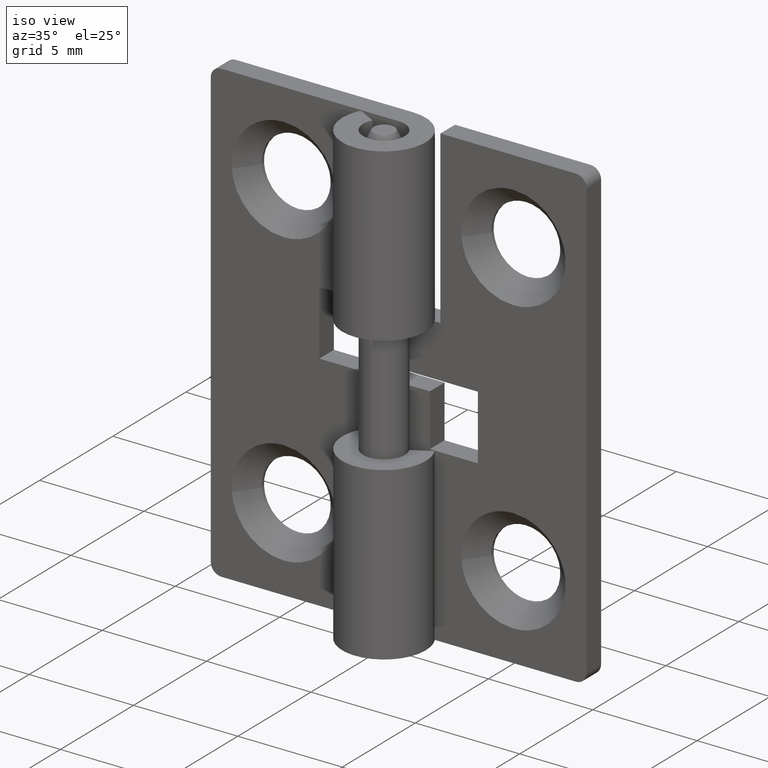
[diagram: clean part render]
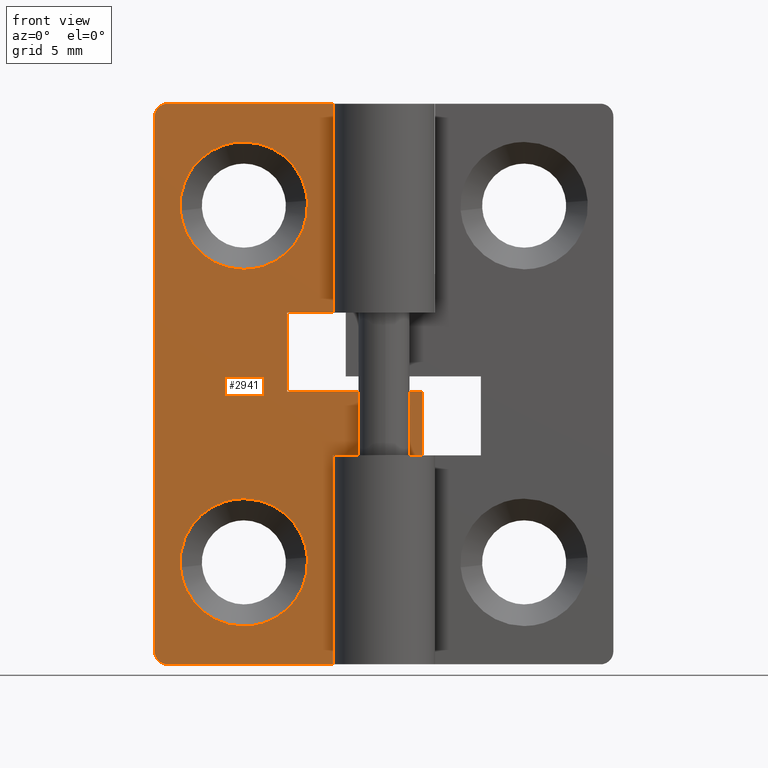
[diagram: tour spotlight — one face highlighted and labeled with its STEP entity id]
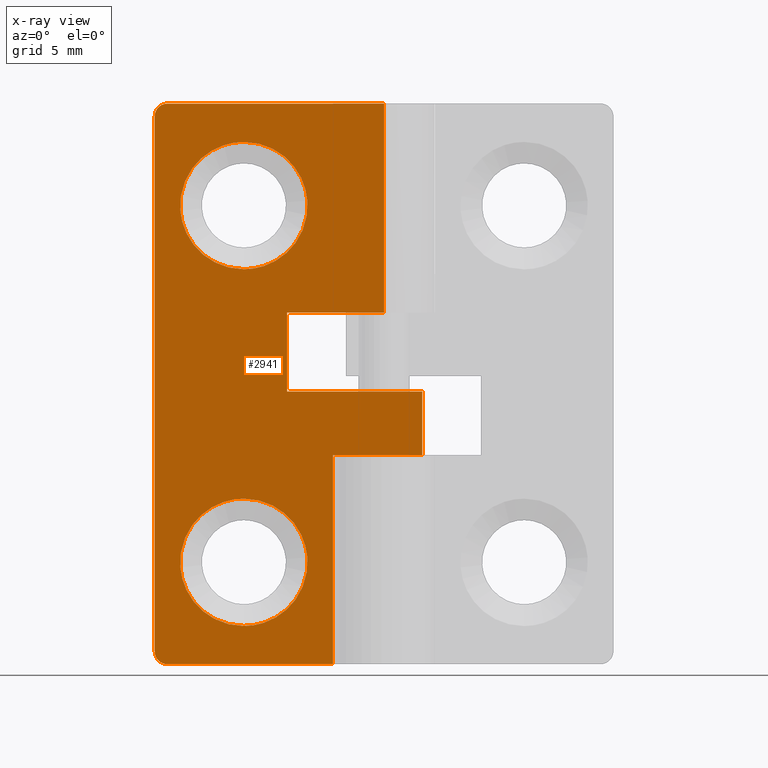
[diagram: x-ray of the same camera — body ghosted, this tour face saturated]
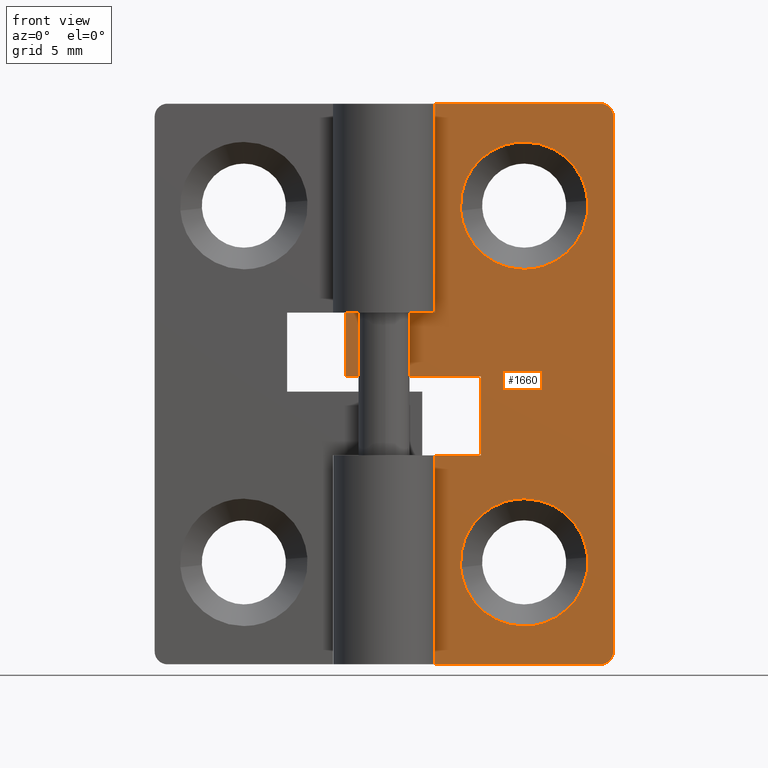
[diagram: tour spotlight — one face highlighted and labeled with its STEP entity id]
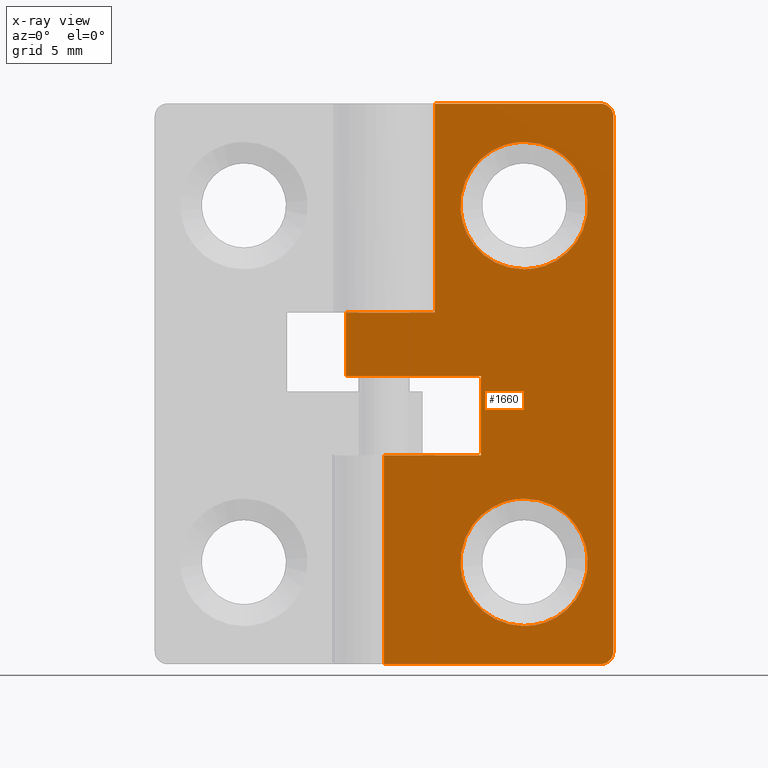
[diagram: x-ray of the same camera — body ghosted, this tour face saturated]
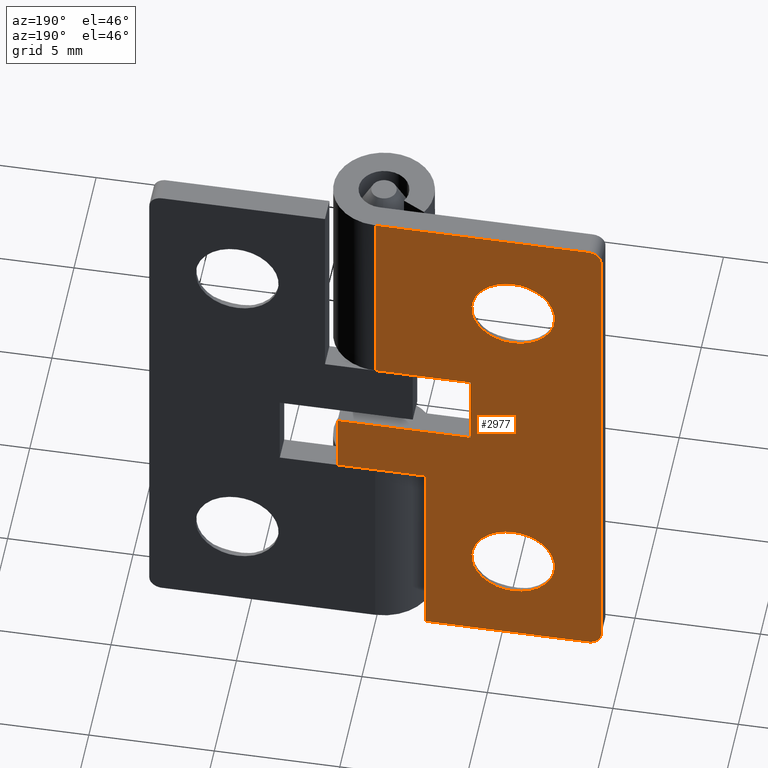
[diagram: tour spotlight — one face highlighted and labeled with its STEP entity id]
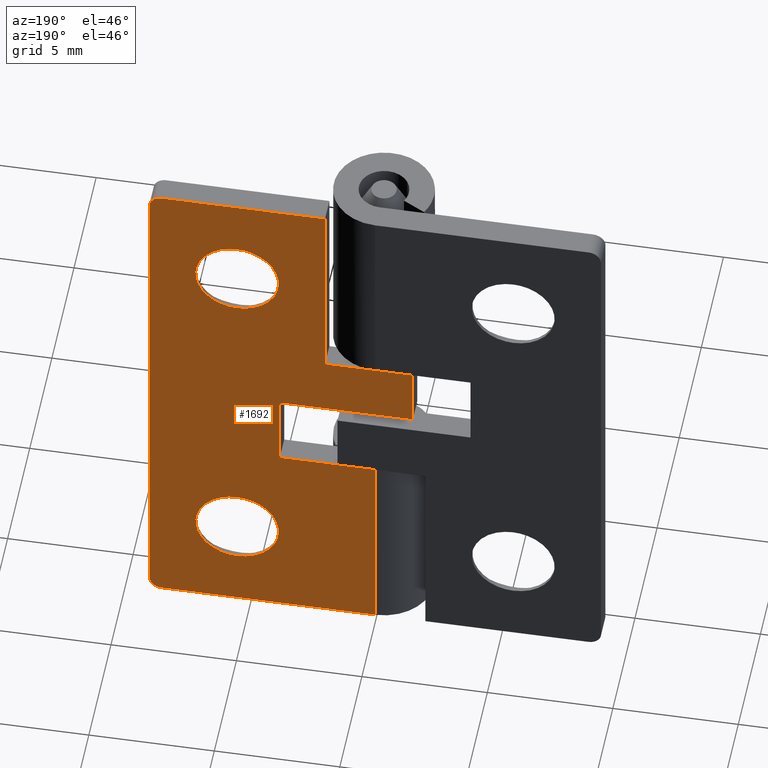
[diagram: tour spotlight — one face highlighted and labeled with its STEP entity id]
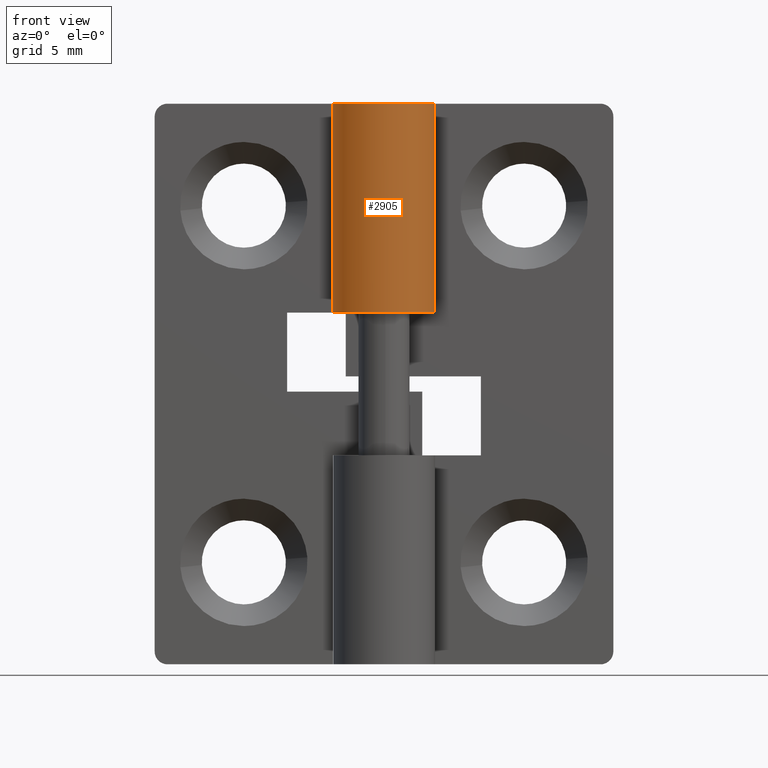
[diagram: tour spotlight — one face highlighted and labeled with its STEP entity id]
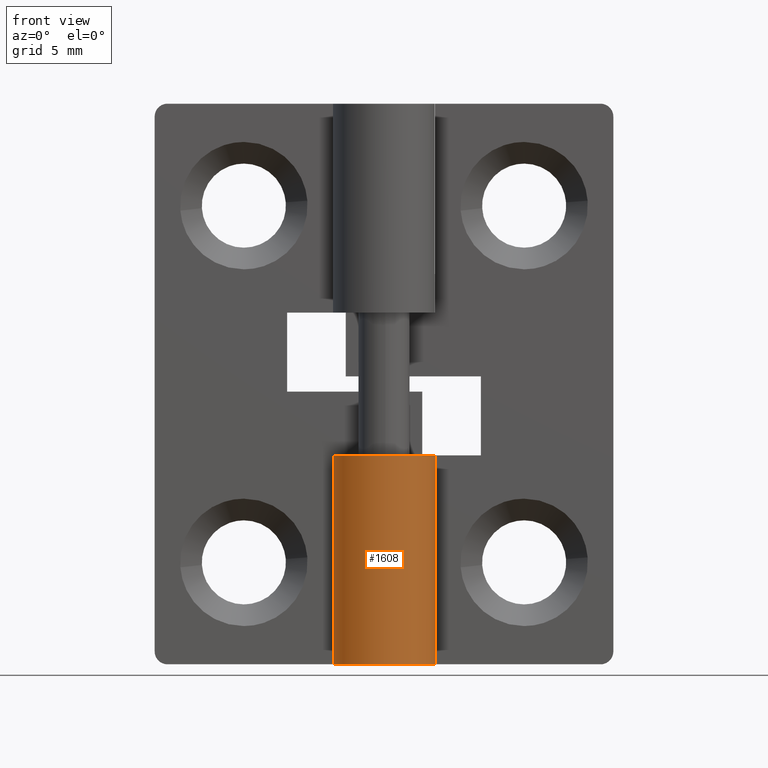
[diagram: tour spotlight — one face highlighted and labeled with its STEP entity id]
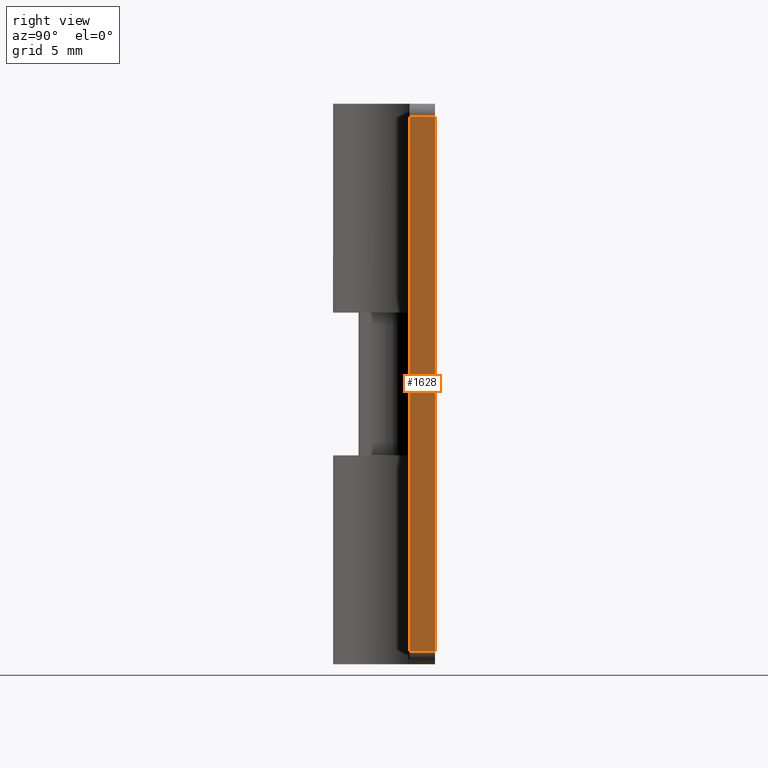
[diagram: tour spotlight — one face highlighted and labeled with its STEP entity id]
A machine part: a face-by-face anatomy tour. The part has 54 B-rep faces; the first image is the clean iso view, then the 7 largest visible faces are spotlighted one at a time (largest first), each with its STEP entity span.

Face 1 — front view, entity #2941. An x-ray twin of the same camera follows (body ghosted, this face saturated) — the face is partly hidden behind the body. In plain terms, the highlighted face is a freeform B-spline surface patch.
Definition (entity closure, byte-faithful):
#1954=CARTESIAN_POINT('',(-3.007706665666458,0.999999999998199,18.196147739333380));
#1955=VERTEX_POINT('',#1954);
#1961=CARTESIAN_POINT('',(-5.500000000000000,1.0,20.500000000000000));
#1962=VERTEX_POINT('',#1961);
#1963=CARTESIAN_POINT('',(-5.500000000000000,1.0,20.500000000000000));
#1964=CARTESIAN_POINT('',(-3.189023770879833,1.0,20.500000000000000));
#1965=CARTESIAN_POINT('',(-3.007706665666458,0.999999999998199,18.196147739333384));
#1973=(BOUNDED_CURVE()B_SPLINE_CURVE(2,(#1963,#1964,#1965),.UNSPECIFIED.,.F.,.U.)B_SPLINE_CURVE_WITH_KNOTS((3,3),(0.0,0.236331300630892),.UNSPECIFIED.)CURVE()GEOMETRIC_REPRESENTATION_ITEM()RATIONAL_B_SPLINE_CURVE((1.0,0.723120658607393,0.969723356167903))REPRESENTATION_ITEM(''));
#1974=EDGE_CURVE('',#1962,#1955,#1973,.T.);
#1976=CARTESIAN_POINT('',(-7.992293334333542,0.999999999998199,17.803852260666620));
#1977=VERTEX_POINT('',#1976);
#1978=CARTESIAN_POINT('',(-7.992293334333542,0.999999999998199,17.803852260666616));
#1979=CARTESIAN_POINT('',(-8.0,1.0,17.901774732467135));
#1980=CARTESIAN_POINT('',(-8.0,1.0,18.0));
#1981=CARTESIAN_POINT('',(-8.0,1.0,20.499999999999993));
#1982=CARTESIAN_POINT('',(-5.500000000000000,1.0,20.500000000000000));
#1990=(BOUNDED_CURVE()B_SPLINE_CURVE(2,(#1978,#1979,#1980,#1981,#1982),.UNSPECIFIED.,.F.,.U.)B_SPLINE_CURVE_WITH_KNOTS((3,2,3),(0.736331300630892,0.750000000000000,1.0),.UNSPECIFIED.)CURVE()GEOMETRIC_REPRESENTATION_ITEM()RATIONAL_B_SPLINE_CURVE((0.969723356167904,0.983986122579155,1.0,0.707106781186548,1.0))REPRESENTATION_ITEM(''));
#1991=EDGE_CURVE('',#1977,#1962,#1990,.T.);
#2028=CARTESIAN_POINT('',(-5.500000000000000,1.0,15.500000000000000));
#2029=VERTEX_POINT('',#2028);
#2030=CARTESIAN_POINT('',(-5.500000000000000,1.0,15.500000000000000));
#2031=CARTESIAN_POINT('',(-7.810976229120165,1.0,15.499999999999991));
#2032=CARTESIAN_POINT('',(-7.992293334333542,0.999999999998199,17.803852260666613));
#2040=(BOUNDED_CURVE()B_SPLINE_CURVE(2,(#2030,#2031,#2032),.UNSPECIFIED.,.F.,.U.)B_SPLINE_CURVE_WITH_KNOTS((3,3),(0.500000000000000,0.736331300630892),.UNSPECIFIED.)CURVE()GEOMETRIC_REPRESENTATION_ITEM()RATIONAL_B_SPLINE_CURVE((1.0,0.723120658607393,0.969723356167903))REPRESENTATION_ITEM(''));
#2041=EDGE_CURVE('',#2029,#1977,#2040,.T.);
#2043=CARTESIAN_POINT('',(-3.007706665666457,0.999999999998199,18.196147739333377));
#2044=CARTESIAN_POINT('',(-3.000000000000000,1.0,18.098225267532868));
#2045=CARTESIAN_POINT('',(-3.0,1.0,18.0));
#2046=CARTESIAN_POINT('',(-2.999999999999999,1.0,15.500000000000004));
#2047=CARTESIAN_POINT('',(-5.500000000000000,1.0,15.500000000000000));
#2055=(BOUNDED_CURVE()B_SPLINE_CURVE(2,(#2043,#2044,#2045,#2046,#2047),.UNSPECIFIED.,.F.,.U.)B_SPLINE_CURVE_WITH_KNOTS((3,2,3),(0.236331300630892,0.250000000000000,0.500000000000000),.UNSPECIFIED.)CURVE()GEOMETRIC_REPRESENTATION_ITEM()RATIONAL_B_SPLINE_CURVE((0.969723356167903,0.983986122579155,1.0,0.707106781186548,1.0))REPRESENTATION_ITEM(''));
#2056=EDGE_CURVE('',#1955,#2029,#2055,.T.);
#2282=CARTESIAN_POINT('',(-3.007706665666458,0.999999999998199,4.196147739333382));
#2283=VERTEX_POINT('',#2282);
#2289=CARTESIAN_POINT('',(-5.500000000000000,1.0,6.500000000000001));
#2290=VERTEX_POINT('',#2289);
#2291=CARTESIAN_POINT('',(-5.500000000000000,1.0,6.500000000000001));
#2292=CARTESIAN_POINT('',(-3.189023770879833,1.0,6.500000000000002));
#2293=CARTESIAN_POINT('',(-3.007706665666458,0.999999999998199,4.196147739333382));
#2301=(BOUNDED_CURVE()B_SPLINE_CURVE(2,(#2291,#2292,#2293),.UNSPECIFIED.,.F.,.U.)B_SPLINE_CURVE_WITH_KNOTS((3,3),(0.0,0.236331300630892),.UNSPECIFIED.)CURVE()GEOMETRIC_REPRESENTATION_ITEM()RATIONAL_B_SPLINE_CURVE((1.0,0.723120658607393,0.969723356167903))REPRESENTATION_ITEM(''));
#2302=EDGE_CURVE('',#2290,#2283,#2301,.T.);
#2304=CARTESIAN_POINT('',(-7.992293334333541,0.999999999998200,3.803852260666618));
#2305=VERTEX_POINT('',#2304);
#2306=CARTESIAN_POINT('',(-7.992293334333541,0.999999999998200,3.803852260666618));
#2307=CARTESIAN_POINT('',(-8.0,1.0,3.901774732467135));
#2308=CARTESIAN_POINT('',(-8.0,1.0,4.0));
#2309=CARTESIAN_POINT('',(-8.0,1.0,6.500000000000003));
#2310=CARTESIAN_POINT('',(-5.500000000000000,1.0,6.500000000000001));
#2318=(BOUNDED_CURVE()B_SPLINE_CURVE(2,(#2306,#2307,#2308,#2309,#2310),.UNSPECIFIED.,.F.,.U.)B_SPLINE_CURVE_WITH_KNOTS((3,2,3),(0.736331300630892,0.750000000000000,1.0),.UNSPECIFIED.)CURVE()GEOMETRIC_REPRESENTATION_ITEM()RATIONAL_B_SPLINE_CURVE((0.969723356167903,0.983986122579155,1.0,0.707106781186548,1.0))REPRESENTATION_ITEM(''));
#2319=EDGE_CURVE('',#2305,#2290,#2318,.T.);
#2356=CARTESIAN_POINT('',(-5.500000000000000,1.0,1.500000000000000));
#2357=VERTEX_POINT('',#2356);
#2358=CARTESIAN_POINT('',(-5.500000000000000,1.0,1.500000000000000));
#2359=CARTESIAN_POINT('',(-7.810976229120165,1.0,1.500000000000000));
#2360=CARTESIAN_POINT('',(-7.992293334333541,0.999999999998200,3.803852260666619));
#2368=(BOUNDED_CURVE()B_SPLINE_CURVE(2,(#2358,#2359,#2360),.UNSPECIFIED.,.F.,.U.)B_SPLINE_CURVE_WITH_KNOTS((3,3),(0.500000000000000,0.736331300630892),.UNSPECIFIED.)CURVE()GEOMETRIC_REPRESENTATION_ITEM()RATIONAL_B_SPLINE_CURVE((1.0,0.723120658607393,0.969723356167903))REPRESENTATION_ITEM(''));
#2369=EDGE_CURVE('',#2357,#2305,#2368,.T.);
#2371=CARTESIAN_POINT('',(-3.007706665666457,0.999999999998199,4.196147739333382));
#2372=CARTESIAN_POINT('',(-3.000000000000000,1.0,4.098225267532865));
#2373=CARTESIAN_POINT('',(-3.0,1.0,4.0));
#2374=CARTESIAN_POINT('',(-2.999999999999999,1.0,1.500000000000000));
#2375=CARTESIAN_POINT('',(-5.500000000000000,1.0,1.500000000000000));
#2383=(BOUNDED_CURVE()B_SPLINE_CURVE(2,(#2371,#2372,#2373,#2374,#2375),.UNSPECIFIED.,.F.,.U.)B_SPLINE_CURVE_WITH_KNOTS((3,2,3),(0.236331300630892,0.250000000000000,0.500000000000000),.UNSPECIFIED.)CURVE()GEOMETRIC_REPRESENTATION_ITEM()RATIONAL_B_SPLINE_CURVE((0.969723356167903,0.983986122579155,1.0,0.707106781186548,1.0))REPRESENTATION_ITEM(''));
#2384=EDGE_CURVE('',#2283,#2357,#2383,.T.);
#2404=CARTESIAN_POINT('',(1.500000000000000,1.0,8.199997000000000));
#2405=VERTEX_POINT('',#2404);
#2411=CARTESIAN_POINT('',(-2.0,1.0,8.199997000000000));
#2412=VERTEX_POINT('',#2411);
#2413=CARTESIAN_POINT('',(-2.0,1.0,8.199997000000000));
#2414=CARTESIAN_POINT('',(1.500000000000000,1.0,8.199997000000000));
#2415=QUASI_UNIFORM_CURVE('',1,(#2413,#2414),.UNSPECIFIED.,.F.,.U.);
#2416=EDGE_CURVE('',#2412,#2405,#2415,.T.);
#2438=CARTESIAN_POINT('',(1.500000000000000,1.0,10.699997000000000));
#2439=VERTEX_POINT('',#2438);
#2445=CARTESIAN_POINT('',(1.500000000000000,1.0,8.199997000000000));
#2446=CARTESIAN_POINT('',(1.500000000000000,1.0,10.699997000000000));
#2447=QUASI_UNIFORM_CURVE('',1,(#2445,#2446),.UNSPECIFIED.,.F.,.U.);
#2448=EDGE_CURVE('',#2405,#2439,#2447,.T.);
#2459=CARTESIAN_POINT('',(-3.800003000000000,1.0,10.699997000000000));
#2460=VERTEX_POINT('',#2459);
#2461=CARTESIAN_POINT('',(1.500000000000000,1.0,10.699997000000000));
#2462=CARTESIAN_POINT('',(-3.800003000000000,1.0,10.699997000000000));
#2463=QUASI_UNIFORM_CURVE('',1,(#2461,#2462),.UNSPECIFIED.,.F.,.U.);
#2464=EDGE_CURVE('',#2439,#2460,#2463,.T.);
#2495=CARTESIAN_POINT('',(-3.800003000000000,1.0,13.800003000000000));
#2496=VERTEX_POINT('',#2495);
#2502=CARTESIAN_POINT('',(-3.800003000000000,1.0,10.699997000000000));
#2503=CARTESIAN_POINT('',(-3.800003000000000,1.0,13.800003000000000));
#2504=QUASI_UNIFORM_CURVE('',1,(#2502,#2503),.UNSPECIFIED.,.F.,.U.);
#2505=EDGE_CURVE('',#2460,#2496,#2504,.T.);
#2545=CARTESIAN_POINT('',(6.123032E-017,1.0,13.800002999999940));
#2546=VERTEX_POINT('',#2545);
#2566=CARTESIAN_POINT('',(-3.800003000000000,1.0,13.800003000000000));
#2567=CARTESIAN_POINT('',(6.123032E-017,1.0,13.800002999999940));
#2568=QUASI_UNIFORM_CURVE('',1,(#2566,#2567),.UNSPECIFIED.,.F.,.U.);
#2569=EDGE_CURVE('',#2496,#2546,#2568,.T.);
#2594=CARTESIAN_POINT('',(-8.500000000000000,1.0,22.0));
#2595=VERTEX_POINT('',#2594);
#2596=CARTESIAN_POINT('',(-9.0,1.0,21.500000000000000));
#2597=VERTEX_POINT('',#2596);
#2598=CARTESIAN_POINT('',(-8.500000000000000,1.0,22.0));
#2599=CARTESIAN_POINT('',(-9.000000000000002,1.0,22.000000000000007));
#2600=CARTESIAN_POINT('',(-9.000000000000002,1.0,21.500000000000000));
#2608=(BOUNDED_CURVE()B_SPLINE_CURVE(2,(#2598,#2599,#2600),.UNSPECIFIED.,.F.,.U.)CURVE()GEOMETRIC_REPRESENTATION_ITEM()QUASI_UNIFORM_CURVE()RATIONAL_B_SPLINE_CURVE((1.0,0.707106781186548,1.0))REPRESENTATION_ITEM(''));
#2609=EDGE_CURVE('',#2595,#2597,#2608,.T.);
#2655=CARTESIAN_POINT('',(-9.0,1.0,0.499999999999945));
#2656=VERTEX_POINT('',#2655);
#2657=CARTESIAN_POINT('',(-8.500000000000000,1.0,0.0));
#2658=VERTEX_POINT('',#2657);
#2659=CARTESIAN_POINT('',(-9.000000000000002,1.0,0.499999999999945));
#2660=CARTESIAN_POINT('',(-8.999999999999945,1.0,0.0));
#2661=CARTESIAN_POINT('',(-8.500000000000000,1.0,0.0));
#2669=(BOUNDED_CURVE()B_SPLINE_CURVE(2,(#2659,#2660,#2661),.UNSPECIFIED.,.F.,.U.)CURVE()GEOMETRIC_REPRESENTATION_ITEM()QUASI_UNIFORM_CURVE()RATIONAL_B_SPLINE_CURVE((1.0,0.707106781186586,1.0))REPRESENTATION_ITEM(''));
#2670=EDGE_CURVE('',#2656,#2658,#2669,.T.);
#2715=CARTESIAN_POINT('',(6.123032E-017,1.0,22.0));
#2716=VERTEX_POINT('',#2715);
#2717=CARTESIAN_POINT('',(6.123032E-017,1.0,22.0));
#2718=CARTESIAN_POINT('',(-8.500000000000000,1.0,22.0));
#2719=QUASI_UNIFORM_CURVE('',1,(#2717,#2718),.UNSPECIFIED.,.F.,.U.);
#2720=EDGE_CURVE('',#2716,#2595,#2719,.T.);
#2783=CARTESIAN_POINT('',(-9.0,1.0,21.500000000000000));
#2784=CARTESIAN_POINT('',(-9.0,1.0,0.499999999999945));
#2785=QUASI_UNIFORM_CURVE('',1,(#2783,#2784),.UNSPECIFIED.,.F.,.U.);
#2786=EDGE_CURVE('',#2597,#2656,#2785,.T.);
#2804=CARTESIAN_POINT('',(-2.0,1.0,0.0));
#2805=VERTEX_POINT('',#2804);
#2811=CARTESIAN_POINT('',(-2.0,1.0,0.0));
#2812=CARTESIAN_POINT('',(-8.500000000000000,1.0,0.0));
#2813=QUASI_UNIFORM_CURVE('',1,(#2811,#2812),.UNSPECIFIED.,.F.,.U.);
#2814=EDGE_CURVE('',#2805,#2658,#2813,.T.);
#2849=CARTESIAN_POINT('',(6.123032E-017,1.0,22.0));
#2850=CARTESIAN_POINT('',(6.123032E-017,1.0,13.800002999999940));
#2851=QUASI_UNIFORM_CURVE('',1,(#2849,#2850),.UNSPECIFIED.,.F.,.U.);
#2852=EDGE_CURVE('',#2716,#2546,#2851,.T.);
#2906=CARTESIAN_POINT('',(-9.524474979648964,1.0,23.098899957359730));
#2907=CARTESIAN_POINT('',(-9.524474979648964,1.0,-1.098900547445714));
#2908=CARTESIAN_POINT('',(2.024475261280910,1.0,23.098899957359730));
#2909=CARTESIAN_POINT('',(2.024475261280910,1.0,-1.098900547445714));
#2910=B_SPLINE_SURFACE_WITH_KNOTS('',1,1,((#2906,#2908),(#2907,#2909)),.UNSPECIFIED.,.F.,.F.,.U.,(2,2),(2,2),(0.0,24.197800504805439),(0.0,11.548950240929880),.UNSPECIFIED.);
#2911=ORIENTED_EDGE('',*,*,#2505,.T.);
#2912=ORIENTED_EDGE('',*,*,#2569,.T.);
#2913=ORIENTED_EDGE('',*,*,#2852,.F.);
#2914=ORIENTED_EDGE('',*,*,#2720,.T.);
#2915=ORIENTED_EDGE('',*,*,#2609,.T.);
#2916=ORIENTED_EDGE('',*,*,#2786,.T.);
#2917=ORIENTED_EDGE('',*,*,#2670,.T.);
#2918=ORIENTED_EDGE('',*,*,#2814,.F.);
#2919=CARTESIAN_POINT('',(-2.0,1.0,0.0));
#2920=CARTESIAN_POINT('',(-2.0,1.0,8.199997000000000));
#2921=QUASI_UNIFORM_CURVE('',1,(#2919,#2920),.UNSPECIFIED.,.F.,.U.);
#2922=EDGE_CURVE('',#2805,#2412,#2921,.T.);
#2923=ORIENTED_EDGE('',*,*,#2922,.T.);
#2924=ORIENTED_EDGE('',*,*,#2416,.T.);
#2925=ORIENTED_EDGE('',*,*,#2448,.T.);
#2926=ORIENTED_EDGE('',*,*,#2464,.T.);
#2927=EDGE_LOOP('',(#2911,#2912,#2913,#2914,#2915,#2916,#2917,#2918,#2923,#2924,#2925,#2926));
#2928=FACE_OUTER_BOUND('',#2927,.T.);
#2929=ORIENTED_EDGE('',*,*,#2369,.T.);
#2930=ORIENTED_EDGE('',*,*,#2319,.T.);
#2931=ORIENTED_EDGE('',*,*,#2302,.T.);
#2932=ORIENTED_EDGE('',*,*,#2384,.T.);
#2933=EDGE_LOOP('',(#2929,#2930,#2931,#2932));
#2934=FACE_BOUND('',#2933,.T.);
#2935=ORIENTED_EDGE('',*,*,#2041,.T.);
#2936=ORIENTED_EDGE('',*,*,#1991,.T.);
#2937=ORIENTED_EDGE('',*,*,#1974,.T.);
#2938=ORIENTED_EDGE('',*,*,#2056,.T.);
#2939=EDGE_LOOP('',(#2935,#2936,#2937,#2938));
#2940=FACE_BOUND('',#2939,.T.);
#2941=ADVANCED_FACE('',(#2928,#2934,#2940),#2910,.T.);

Face 2 — front view, entity #1660. An x-ray twin of the same camera follows (body ghosted, this face saturated) — the face is partly hidden behind the body. In plain terms, the highlighted face is a freeform B-spline surface patch.
Definition (entity closure, byte-faithful):
#657=CARTESIAN_POINT('',(7.992293334333542,0.999999999998199,18.196147739333380));
#658=VERTEX_POINT('',#657);
#664=CARTESIAN_POINT('',(5.500000000000000,1.0,20.500000000000000));
#665=VERTEX_POINT('',#664);
#666=CARTESIAN_POINT('',(5.500000000000000,1.0,20.500000000000000));
#667=CARTESIAN_POINT('',(7.810976229120167,1.0,20.500000000000000));
#668=CARTESIAN_POINT('',(7.992293334333542,0.999999999998199,18.196147739333384));
#676=(BOUNDED_CURVE()B_SPLINE_CURVE(2,(#666,#667,#668),.UNSPECIFIED.,.F.,.U.)B_SPLINE_CURVE_WITH_KNOTS((3,3),(0.0,0.236331300630892),.UNSPECIFIED.)CURVE()GEOMETRIC_REPRESENTATION_ITEM()RATIONAL_B_SPLINE_CURVE((1.0,0.723120658607393,0.969723356167903))REPRESENTATION_ITEM(''));
#677=EDGE_CURVE('',#665,#658,#676,.T.);
#679=CARTESIAN_POINT('',(3.007706665666458,0.999999999998199,17.803852260666620));
#680=VERTEX_POINT('',#679);
#681=CARTESIAN_POINT('',(3.007706665666458,0.999999999998199,17.803852260666616));
#682=CARTESIAN_POINT('',(3.0,1.0,17.901774732467135));
#683=CARTESIAN_POINT('',(3.0,1.0,18.0));
#684=CARTESIAN_POINT('',(2.999999999999999,1.0,20.499999999999993));
#685=CARTESIAN_POINT('',(5.500000000000000,1.0,20.500000000000000));
#693=(BOUNDED_CURVE()B_SPLINE_CURVE(2,(#681,#682,#683,#684,#685),.UNSPECIFIED.,.F.,.U.)B_SPLINE_CURVE_WITH_KNOTS((3,2,3),(0.736331300630892,0.750000000000000,1.0),.UNSPECIFIED.)CURVE()GEOMETRIC_REPRESENTATION_ITEM()RATIONAL_B_SPLINE_CURVE((0.969723356167904,0.983986122579155,1.0,0.707106781186548,1.0))REPRESENTATION_ITEM(''));
#694=EDGE_CURVE('',#680,#665,#693,.T.);
#731=CARTESIAN_POINT('',(5.500000000000000,1.0,15.500000000000000));
#732=VERTEX_POINT('',#731);
#733=CARTESIAN_POINT('',(5.500000000000000,1.0,15.500000000000000));
#734=CARTESIAN_POINT('',(3.189023770879836,1.0,15.499999999999991));
#735=CARTESIAN_POINT('',(3.007706665666458,0.999999999998199,17.803852260666613));
#743=(BOUNDED_CURVE()B_SPLINE_CURVE(2,(#733,#734,#735),.UNSPECIFIED.,.F.,.U.)B_SPLINE_CURVE_WITH_KNOTS((3,3),(0.500000000000000,0.736331300630892),.UNSPECIFIED.)CURVE()GEOMETRIC_REPRESENTATION_ITEM()RATIONAL_B_SPLINE_CURVE((1.0,0.723120658607393,0.969723356167903))REPRESENTATION_ITEM(''));
#744=EDGE_CURVE('',#732,#680,#743,.T.);
#746=CARTESIAN_POINT('',(7.992293334333542,0.999999999998199,18.196147739333377));
#747=CARTESIAN_POINT('',(8.0,1.0,18.098225267532868));
#748=CARTESIAN_POINT('',(8.0,1.0,18.0));
#749=CARTESIAN_POINT('',(8.0,1.0,15.500000000000004));
#750=CARTESIAN_POINT('',(5.500000000000000,1.0,15.500000000000000));
#758=(BOUNDED_CURVE()B_SPLINE_CURVE(2,(#746,#747,#748,#749,#750),.UNSPECIFIED.,.F.,.U.)B_SPLINE_CURVE_WITH_KNOTS((3,2,3),(0.236331300630892,0.250000000000000,0.500000000000000),.UNSPECIFIED.)CURVE()GEOMETRIC_REPRESENTATION_ITEM()RATIONAL_B_SPLINE_CURVE((0.969723356167903,0.983986122579155,1.0,0.707106781186548,1.0))REPRESENTATION_ITEM(''));
#759=EDGE_CURVE('',#658,#732,#758,.T.);
#985=CARTESIAN_POINT('',(7.992293334333542,0.999999999998199,4.196147739333381));
#986=VERTEX_POINT('',#985);
#992=CARTESIAN_POINT('',(5.500000000000000,1.0,6.500000000000001));
#993=VERTEX_POINT('',#992);
#994=CARTESIAN_POINT('',(5.500000000000000,1.0,6.500000000000001));
#995=CARTESIAN_POINT('',(7.810976229120167,1.0,6.500000000000002));
#996=CARTESIAN_POINT('',(7.992293334333542,0.999999999998199,4.196147739333382));
#1004=(BOUNDED_CURVE()B_SPLINE_CURVE(2,(#994,#995,#996),.UNSPECIFIED.,.F.,.U.)B_SPLINE_CURVE_WITH_KNOTS((3,3),(0.0,0.236331300630892),.UNSPECIFIED.)CURVE()GEOMETRIC_REPRESENTATION_ITEM()RATIONAL_B_SPLINE_CURVE((1.0,0.723120658607393,0.969723356167903))REPRESENTATION_ITEM(''));
#1005=EDGE_CURVE('',#993,#986,#1004,.T.);
#1007=CARTESIAN_POINT('',(3.007706665666458,0.999999999998199,3.803852260666618));
#1008=VERTEX_POINT('',#1007);
#1009=CARTESIAN_POINT('',(3.007706665666457,0.999999999998199,3.803852260666618));
#1010=CARTESIAN_POINT('',(3.000000000000000,1.0,3.901774732467135));
#1011=CARTESIAN_POINT('',(3.0,1.0,4.0));
#1012=CARTESIAN_POINT('',(2.999999999999999,1.0,6.500000000000003));
#1013=CARTESIAN_POINT('',(5.500000000000000,1.0,6.500000000000001));
#1021=(BOUNDED_CURVE()B_SPLINE_CURVE(2,(#1009,#1010,#1011,#1012,#1013),.UNSPECIFIED.,.F.,.U.)B_SPLINE_CURVE_WITH_KNOTS((3,2,3),(0.736331300630892,0.750000000000000,1.0),.UNSPECIFIED.)CURVE()GEOMETRIC_REPRESENTATION_ITEM()RATIONAL_B_SPLINE_CURVE((0.969723356167903,0.983986122579155,1.0,0.707106781186548,1.0))REPRESENTATION_ITEM(''));
#1022=EDGE_CURVE('',#1008,#993,#1021,.T.);
#1059=CARTESIAN_POINT('',(5.500000000000000,1.0,1.500000000000000));
#1060=VERTEX_POINT('',#1059);
#1061=CARTESIAN_POINT('',(5.500000000000000,1.0,1.500000000000000));
#1062=CARTESIAN_POINT('',(3.189023770879836,1.0,1.500000000000000));
#1063=CARTESIAN_POINT('',(3.007706665666458,0.999999999998199,3.803852260666619));
#1071=(BOUNDED_CURVE()B_SPLINE_CURVE(2,(#1061,#1062,#1063),.UNSPECIFIED.,.F.,.U.)B_SPLINE_CURVE_WITH_KNOTS((3,3),(0.500000000000000,0.736331300630892),.UNSPECIFIED.)CURVE()GEOMETRIC_REPRESENTATION_ITEM()RATIONAL_B_SPLINE_CURVE((1.0,0.723120658607393,0.969723356167903))REPRESENTATION_ITEM(''));
#1072=EDGE_CURVE('',#1060,#1008,#1071,.T.);
#1074=CARTESIAN_POINT('',(7.992293334333542,0.999999999998199,4.196147739333381));
#1075=CARTESIAN_POINT('',(8.0,1.0,4.098225267532865));
#1076=CARTESIAN_POINT('',(8.0,1.0,4.0));
#1077=CARTESIAN_POINT('',(8.0,1.0,1.500000000000000));
#1078=CARTESIAN_POINT('',(5.500000000000000,1.0,1.500000000000000));
#1086=(BOUNDED_CURVE()B_SPLINE_CURVE(2,(#1074,#1075,#1076,#1077,#1078),.UNSPECIFIED.,.F.,.U.)B_SPLINE_CURVE_WITH_KNOTS((3,2,3),(0.236331300630892,0.250000000000000,0.500000000000000),.UNSPECIFIED.)CURVE()GEOMETRIC_REPRESENTATION_ITEM()RATIONAL_B_SPLINE_CURVE((0.969723356167903,0.983986122579155,1.0,0.707106781186548,1.0))REPRESENTATION_ITEM(''));
#1087=EDGE_CURVE('',#986,#1060,#1086,.T.);
#1107=CARTESIAN_POINT('',(-1.500000000000000,1.0,13.800003000000000));
#1108=VERTEX_POINT('',#1107);
#1114=CARTESIAN_POINT('',(2.0,1.0,13.800003000000000));
#1115=VERTEX_POINT('',#1114);
#1116=CARTESIAN_POINT('',(-1.500000000000000,1.0,13.800003000000000));
#1117=CARTESIAN_POINT('',(2.0,1.0,13.800003000000000));
#1118=QUASI_UNIFORM_CURVE('',1,(#1116,#1117),.UNSPECIFIED.,.F.,.U.);
#1119=EDGE_CURVE('',#1108,#1115,#1118,.T.);
#1141=CARTESIAN_POINT('',(-1.500000000000000,1.0,11.300002999999901));
#1142=VERTEX_POINT('',#1141);
#1148=CARTESIAN_POINT('',(-1.500000000000000,1.0,11.300002999999901));
#1149=CARTESIAN_POINT('',(-1.500000000000000,1.0,13.800003000000000));
#1150=QUASI_UNIFORM_CURVE('',1,(#1148,#1149),.UNSPECIFIED.,.F.,.U.);
#1151=EDGE_CURVE('',#1142,#1108,#1150,.T.);
#1162=CARTESIAN_POINT('',(3.799996000000000,1.0,11.300002999999901));
#1163=VERTEX_POINT('',#1162);
#1164=CARTESIAN_POINT('',(3.799996000000000,1.0,11.300002999999901));
#1165=CARTESIAN_POINT('',(-1.500000000000000,1.0,11.300002999999901));
#1166=QUASI_UNIFORM_CURVE('',1,(#1164,#1165),.UNSPECIFIED.,.F.,.U.);
#1167=EDGE_CURVE('',#1163,#1142,#1166,.T.);
#1220=CARTESIAN_POINT('',(-1.836910E-016,1.0,8.199997000000000));
#1221=VERTEX_POINT('',#1220);
#1241=CARTESIAN_POINT('',(3.799996000000000,1.0,8.199997000000000));
#1242=VERTEX_POINT('',#1241);
#1243=CARTESIAN_POINT('',(-1.836910E-016,1.0,8.199997000000000));
#1244=CARTESIAN_POINT('',(3.799996000000000,1.0,8.199997000000000));
#1245=QUASI_UNIFORM_CURVE('',1,(#1243,#1244),.UNSPECIFIED.,.F.,.U.);
#1246=EDGE_CURVE('',#1221,#1242,#1245,.T.);
#1268=CARTESIAN_POINT('',(3.799996000000000,1.0,8.199997000000000));
#1269=CARTESIAN_POINT('',(3.799996000000000,1.0,11.300002999999901));
#1270=QUASI_UNIFORM_CURVE('',1,(#1268,#1269),.UNSPECIFIED.,.F.,.U.);
#1271=EDGE_CURVE('',#1242,#1163,#1270,.T.);
#1296=CARTESIAN_POINT('',(2.0,1.0,22.0));
#1297=VERTEX_POINT('',#1296);
#1298=CARTESIAN_POINT('',(2.0,1.0,13.800003000000000));
#1299=CARTESIAN_POINT('',(2.0,1.0,22.0));
#1300=QUASI_UNIFORM_CURVE('',1,(#1298,#1299),.UNSPECIFIED.,.F.,.U.);
#1301=EDGE_CURVE('',#1115,#1297,#1300,.T.);
#1325=CARTESIAN_POINT('',(9.0,1.0,21.500000000000000));
#1326=VERTEX_POINT('',#1325);
#1327=CARTESIAN_POINT('',(8.500000000000000,1.0,22.0));
#1328=VERTEX_POINT('',#1327);
#1329=CARTESIAN_POINT('',(9.000000000000002,1.0,21.500000000000000));
#1330=CARTESIAN_POINT('',(9.000000000000002,1.0,22.000000000000007));
#1331=CARTESIAN_POINT('',(8.500000000000000,1.0,22.0));
#1339=(BOUNDED_CURVE()B_SPLINE_CURVE(2,(#1329,#1330,#1331),.UNSPECIFIED.,.F.,.U.)CURVE()GEOMETRIC_REPRESENTATION_ITEM()QUASI_UNIFORM_CURVE()RATIONAL_B_SPLINE_CURVE((1.0,0.707106781186548,1.0))REPRESENTATION_ITEM(''));
#1340=EDGE_CURVE('',#1326,#1328,#1339,.T.);
#1386=CARTESIAN_POINT('',(8.500000000000000,1.0,0.0));
#1387=VERTEX_POINT('',#1386);
#1388=CARTESIAN_POINT('',(9.0,1.0,0.499999999999945));
#1389=VERTEX_POINT('',#1388);
#1390=CARTESIAN_POINT('',(8.500000000000000,1.0,0.0));
#1391=CARTESIAN_POINT('',(9.000000000000002,1.0,-5.496905E-014));
#1392=CARTESIAN_POINT('',(9.000000000000002,1.0,0.499999999999945));
#1400=(BOUNDED_CURVE()B_SPLINE_CURVE(2,(#1390,#1391,#1392),.UNSPECIFIED.,.F.,.U.)CURVE()GEOMETRIC_REPRESENTATION_ITEM()QUASI_UNIFORM_CURVE()RATIONAL_B_SPLINE_CURVE((1.0,0.707106781186548,1.0))REPRESENTATION_ITEM(''));
#1401=EDGE_CURVE('',#1387,#1389,#1400,.T.);
#1439=CARTESIAN_POINT('',(2.0,1.0,22.0));
#1440=CARTESIAN_POINT('',(8.500000000000000,1.0,22.0));
#1441=QUASI_UNIFORM_CURVE('',1,(#1439,#1440),.UNSPECIFIED.,.F.,.U.);
#1442=EDGE_CURVE('',#1297,#1328,#1441,.T.);
#1466=CARTESIAN_POINT('',(-1.836910E-016,1.0,0.0));
#1467=VERTEX_POINT('',#1466);
#1468=CARTESIAN_POINT('',(-1.836910E-016,1.0,0.0));
#1469=CARTESIAN_POINT('',(8.500000000000000,1.0,0.0));
#1470=QUASI_UNIFORM_CURVE('',1,(#1468,#1469),.UNSPECIFIED.,.F.,.U.);
#1471=EDGE_CURVE('',#1467,#1387,#1470,.T.);
#1545=CARTESIAN_POINT('',(-1.836910E-016,1.0,0.0));
#1546=CARTESIAN_POINT('',(-1.836910E-016,1.0,8.199997000000000));
#1547=QUASI_UNIFORM_CURVE('',1,(#1545,#1546),.UNSPECIFIED.,.F.,.U.);
#1548=EDGE_CURVE('',#1467,#1221,#1547,.T.);
#1614=CARTESIAN_POINT('',(9.0,1.0,0.499999999999945));
#1615=CARTESIAN_POINT('',(9.0,1.0,21.500000000000000));
#1616=QUASI_UNIFORM_CURVE('',1,(#1614,#1615),.UNSPECIFIED.,.F.,.U.);
#1617=EDGE_CURVE('',#1389,#1326,#1616,.T.);
#1629=CARTESIAN_POINT('',(-2.024474979648963,1.0,23.098899957359730));
#1630=CARTESIAN_POINT('',(-2.024474979648963,1.0,-1.098900547445714));
#1631=CARTESIAN_POINT('',(9.524475261280909,1.0,23.098899957359730));
#1632=CARTESIAN_POINT('',(9.524475261280909,1.0,-1.098900547445714));
#1633=B_SPLINE_SURFACE_WITH_KNOTS('',1,1,((#1629,#1631),(#1630,#1632)),.UNSPECIFIED.,.F.,.F.,.U.,(2,2),(2,2),(0.0,24.197800504805439),(0.0,11.548950240929869),.UNSPECIFIED.);
#1634=ORIENTED_EDGE('',*,*,#1246,.F.);
#1635=ORIENTED_EDGE('',*,*,#1548,.F.);
#1636=ORIENTED_EDGE('',*,*,#1471,.T.);
#1637=ORIENTED_EDGE('',*,*,#1401,.T.);
#1638=ORIENTED_EDGE('',*,*,#1617,.T.);
#1639=ORIENTED_EDGE('',*,*,#1340,.T.);
#1640=ORIENTED_EDGE('',*,*,#1442,.F.);
#1641=ORIENTED_EDGE('',*,*,#1301,.F.);
#1642=ORIENTED_EDGE('',*,*,#1119,.F.);
#1643=ORIENTED_EDGE('',*,*,#1151,.F.);
#1644=ORIENTED_EDGE('',*,*,#1167,.F.);
#1645=ORIENTED_EDGE('',*,*,#1271,.F.);
#1646=EDGE_LOOP('',(#1634,#1635,#1636,#1637,#1638,#1639,#1640,#1641,#1642,#1643,#1644,#1645));
#1647=FACE_OUTER_BOUND('',#1646,.T.);
#1648=ORIENTED_EDGE('',*,*,#1072,.T.);
#1649=ORIENTED_EDGE('',*,*,#1022,.T.);
#1650=ORIENTED_EDGE('',*,*,#1005,.T.);
#1651=ORIENTED_EDGE('',*,*,#1087,.T.);
#1652=EDGE_LOOP('',(#1648,#1649,#1650,#1651));
#1653=FACE_BOUND('',#1652,.T.);
#1654=ORIENTED_EDGE('',*,*,#744,.T.);
#1655=ORIENTED_EDGE('',*,*,#694,.T.);
#1656=ORIENTED_EDGE('',*,*,#677,.T.);
#1657=ORIENTED_EDGE('',*,*,#759,.T.);
#1658=EDGE_LOOP('',(#1654,#1655,#1656,#1657));
#1659=FACE_BOUND('',#1658,.T.);
#1660=ADVANCED_FACE('',(#1647,#1653,#1659),#1633,.T.);

Face 3 — auxiliary view, entity #2977. In plain terms, the highlighted face is a freeform B-spline surface patch.
Definition (entity closure, byte-faithful):
#1769=CARTESIAN_POINT('',(-3.860775836853906,2.0,17.811733850737891));
#1770=VERTEX_POINT('',#1769);
#1776=CARTESIAN_POINT('',(-5.500000000000000,2.0,16.350000000000001));
#1777=VERTEX_POINT('',#1776);
#1778=CARTESIAN_POINT('',(-3.860775836853906,2.000000000000000,17.811733850737891));
#1779=CARTESIAN_POINT('',(-4.028657135322277,1.999999999999999,16.350000000000005));
#1780=CARTESIAN_POINT('',(-5.500000000000000,2.0,16.350000000000001));
#1788=(BOUNDED_CURVE()B_SPLINE_CURVE(2,(#1778,#1779,#1780),.UNSPECIFIED.,.F.,.U.)B_SPLINE_CURVE_WITH_KNOTS((3,3),(0.269767766704691,0.500000000000000),.UNSPECIFIED.)CURVE()GEOMETRIC_REPRESENTATION_ITEM()RATIONAL_B_SPLINE_CURVE((0.957343715101236,0.730266160462109,1.0))REPRESENTATION_ITEM(''));
#1789=EDGE_CURVE('',#1770,#1777,#1788,.T.);
#1791=CARTESIAN_POINT('',(-7.146922417371592,2.0,17.899269909367082));
#1792=VERTEX_POINT('',#1791);
#1793=CARTESIAN_POINT('',(-5.500000000000000,2.0,16.350000000000001));
#1794=CARTESIAN_POINT('',(-7.052165009638249,2.0,16.350000000000005));
#1795=CARTESIAN_POINT('',(-7.146922417371592,2.0,17.899269909367082));
#1803=(BOUNDED_CURVE()B_SPLINE_CURVE(2,(#1793,#1794,#1795),.UNSPECIFIED.,.F.,.U.)B_SPLINE_CURVE_WITH_KNOTS((3,3),(0.500000000000000,0.739332962158068),.UNSPECIFIED.)CURVE()GEOMETRIC_REPRESENTATION_ITEM()RATIONAL_B_SPLINE_CURVE((1.0,0.719603993381462,0.976072041493387))REPRESENTATION_ITEM(''));
#1804=EDGE_CURVE('',#1777,#1792,#1803,.T.);
#1899=CARTESIAN_POINT('',(-5.500000000000000,2.0,19.649999999999999));
#1900=VERTEX_POINT('',#1899);
#1901=CARTESIAN_POINT('',(-7.146922417371592,2.000000000000000,17.899269909367082));
#1902=CARTESIAN_POINT('',(-7.150000000000000,2.000000000000000,17.949587940155801));
#1903=CARTESIAN_POINT('',(-7.150000000000000,2.0,18.0));
#1904=CARTESIAN_POINT('',(-7.150000000000002,2.000000000000000,19.649999999999999));
#1905=CARTESIAN_POINT('',(-5.500000000000000,2.0,19.649999999999999));
#1913=(BOUNDED_CURVE()B_SPLINE_CURVE(2,(#1901,#1902,#1903,#1904,#1905),.UNSPECIFIED.,.F.,.U.)B_SPLINE_CURVE_WITH_KNOTS((3,2,3),(0.739332962158067,0.750000000000000,1.0),.UNSPECIFIED.)CURVE()GEOMETRIC_REPRESENTATION_ITEM()RATIONAL_B_SPLINE_CURVE((0.976072041493386,0.987502787805086,1.0,0.707106781186548,1.0))REPRESENTATION_ITEM(''));
#1914=EDGE_CURVE('',#1792,#1900,#1913,.T.);
#1916=CARTESIAN_POINT('',(-5.500000000000000,2.0,19.649999999999999));
#1917=CARTESIAN_POINT('',(-3.850000000000000,2.000000000000000,19.649999999999999));
#1918=CARTESIAN_POINT('',(-3.850000000000000,2.0,18.0));
#1919=CARTESIAN_POINT('',(-3.850000000000000,2.0,17.905558509250088));
#1920=CARTESIAN_POINT('',(-3.860775836853905,2.0,17.811733850737884));
#1928=(BOUNDED_CURVE()B_SPLINE_CURVE(2,(#1916,#1917,#1918,#1919,#1920),.UNSPECIFIED.,.F.,.U.)B_SPLINE_CURVE_WITH_KNOTS((3,2,3),(0.0,0.250000000000000,0.269767766704691),.UNSPECIFIED.)CURVE()GEOMETRIC_REPRESENTATION_ITEM()RATIONAL_B_SPLINE_CURVE((1.0,0.707106781186548,1.0,0.976840620724439,0.957343715101236))REPRESENTATION_ITEM(''));
#1929=EDGE_CURVE('',#1900,#1770,#1928,.T.);
#2097=CARTESIAN_POINT('',(-3.860775836853906,2.0,3.811733850737889));
#2098=VERTEX_POINT('',#2097);
#2104=CARTESIAN_POINT('',(-5.500000000000000,2.0,2.350000000000000));
#2105=VERTEX_POINT('',#2104);
#2106=CARTESIAN_POINT('',(-3.860775836853905,2.0,3.811733850737890));
#2107=CARTESIAN_POINT('',(-4.028657135322275,2.000000000000000,2.350000000000000));
#2108=CARTESIAN_POINT('',(-5.500000000000000,2.0,2.350000000000000));
#2116=(BOUNDED_CURVE()B_SPLINE_CURVE(2,(#2106,#2107,#2108),.UNSPECIFIED.,.F.,.U.)B_SPLINE_CURVE_WITH_KNOTS((3,3),(0.269767766704691,0.500000000000000),.UNSPECIFIED.)CURVE()GEOMETRIC_REPRESENTATION_ITEM()RATIONAL_B_SPLINE_CURVE((0.957343715101236,0.730266160462109,1.0))REPRESENTATION_ITEM(''));
#2117=EDGE_CURVE('',#2098,#2105,#2116,.T.);
#2119=CARTESIAN_POINT('',(-7.146922417371590,2.0,3.899269909367076));
#2120=VERTEX_POINT('',#2119);
#2121=CARTESIAN_POINT('',(-5.500000000000000,2.0,2.350000000000000));
#2122=CARTESIAN_POINT('',(-7.052165009638249,2.0,2.350000000000001));
#2123=CARTESIAN_POINT('',(-7.146922417371591,2.0,3.899269909367076));
#2131=(BOUNDED_CURVE()B_SPLINE_CURVE(2,(#2121,#2122,#2123),.UNSPECIFIED.,.F.,.U.)B_SPLINE_CURVE_WITH_KNOTS((3,3),(0.500000000000000,0.739332962158068),.UNSPECIFIED.)CURVE()GEOMETRIC_REPRESENTATION_ITEM()RATIONAL_B_SPLINE_CURVE((1.0,0.719603993381462,0.976072041493387))REPRESENTATION_ITEM(''));
#2132=EDGE_CURVE('',#2105,#2120,#2131,.T.);
#2227=CARTESIAN_POINT('',(-5.500000000000000,2.0,5.650000000000000));
#2228=VERTEX_POINT('',#2227);
#2229=CARTESIAN_POINT('',(-7.146922417371591,2.000000000000000,3.899269909367076));
#2230=CARTESIAN_POINT('',(-7.150000000000000,2.000000000000000,3.949587940155796));
#2231=CARTESIAN_POINT('',(-7.150000000000000,2.0,4.0));
#2232=CARTESIAN_POINT('',(-7.150000000000002,2.000000000000000,5.650000000000000));
#2233=CARTESIAN_POINT('',(-5.500000000000000,2.0,5.650000000000000));
#2241=(BOUNDED_CURVE()B_SPLINE_CURVE(2,(#2229,#2230,#2231,#2232,#2233),.UNSPECIFIED.,.F.,.U.)B_SPLINE_CURVE_WITH_KNOTS((3,2,3),(0.739332962158067,0.750000000000000,1.0),.UNSPECIFIED.)CURVE()GEOMETRIC_REPRESENTATION_ITEM()RATIONAL_B_SPLINE_CURVE((0.976072041493385,0.987502787805085,1.0,0.707106781186548,1.0))REPRESENTATION_ITEM(''));
#2242=EDGE_CURVE('',#2120,#2228,#2241,.T.);
#2244=CARTESIAN_POINT('',(-5.500000000000000,2.0,5.650000000000000));
#2245=CARTESIAN_POINT('',(-3.850000000000000,2.000000000000000,5.650000000000000));
#2246=CARTESIAN_POINT('',(-3.850000000000000,2.0,4.0));
#2247=CARTESIAN_POINT('',(-3.850000000000000,2.000000000000000,3.905558509250091));
#2248=CARTESIAN_POINT('',(-3.860775836853905,2.000000000000000,3.811733850737889));
#2256=(BOUNDED_CURVE()B_SPLINE_CURVE(2,(#2244,#2245,#2246,#2247,#2248),.UNSPECIFIED.,.F.,.U.)B_SPLINE_CURVE_WITH_KNOTS((3,2,3),(0.0,0.250000000000000,0.269767766704691),.UNSPECIFIED.)CURVE()GEOMETRIC_REPRESENTATION_ITEM()RATIONAL_B_SPLINE_CURVE((1.0,0.707106781186548,1.0,0.976840620724439,0.957343715101236))REPRESENTATION_ITEM(''));
#2257=EDGE_CURVE('',#2228,#2098,#2256,.T.);
#2395=CARTESIAN_POINT('',(-2.0,2.0,8.199997000000000));
#2396=VERTEX_POINT('',#2395);
#2397=CARTESIAN_POINT('',(1.500000000000000,2.0,8.199997000000000));
#2398=VERTEX_POINT('',#2397);
#2399=CARTESIAN_POINT('',(-2.0,2.0,8.199997000000000));
#2400=CARTESIAN_POINT('',(1.500000000000000,2.0,8.199997000000000));
#2401=QUASI_UNIFORM_CURVE('',1,(#2399,#2400),.UNSPECIFIED.,.F.,.U.);
#2402=EDGE_CURVE('',#2396,#2398,#2401,.T.);
#2431=CARTESIAN_POINT('',(1.500000000000000,2.0,10.699997000000000));
#2432=VERTEX_POINT('',#2431);
#2433=CARTESIAN_POINT('',(1.500000000000000,2.0,8.199997000000000));
#2434=CARTESIAN_POINT('',(1.500000000000000,2.0,10.699997000000000));
#2435=QUASI_UNIFORM_CURVE('',1,(#2433,#2434),.UNSPECIFIED.,.F.,.U.);
#2436=EDGE_CURVE('',#2398,#2432,#2435,.T.);
#2467=CARTESIAN_POINT('',(-3.800003000000000,2.0,10.699997000000000));
#2468=VERTEX_POINT('',#2467);
#2469=CARTESIAN_POINT('',(-3.800003000000000,2.0,10.699997000000000));
#2470=CARTESIAN_POINT('',(1.500000000000000,2.0,10.699997000000000));
#2471=QUASI_UNIFORM_CURVE('',1,(#2469,#2470),.UNSPECIFIED.,.F.,.U.);
#2472=EDGE_CURVE('',#2468,#2432,#2471,.T.);
#2488=CARTESIAN_POINT('',(-3.800003000000000,2.0,13.800003000000000));
#2489=VERTEX_POINT('',#2488);
#2490=CARTESIAN_POINT('',(-3.800003000000000,2.0,13.800003000000000));
#2491=CARTESIAN_POINT('',(-3.800003000000000,2.0,10.699997000000000));
#2492=QUASI_UNIFORM_CURVE('',1,(#2490,#2491),.UNSPECIFIED.,.F.,.U.);
#2493=EDGE_CURVE('',#2489,#2468,#2492,.T.);
#2517=CARTESIAN_POINT('',(0.0,2.0,13.800003000000000));
#2518=VERTEX_POINT('',#2517);
#2572=CARTESIAN_POINT('',(0.0,2.0,13.800003000000000));
#2573=CARTESIAN_POINT('',(-3.800003000000000,2.0,13.800003000000000));
#2574=QUASI_UNIFORM_CURVE('',1,(#2572,#2573),.UNSPECIFIED.,.F.,.U.);
#2575=EDGE_CURVE('',#2518,#2489,#2574,.T.);
#2611=CARTESIAN_POINT('',(-8.500000000000000,2.0,22.0));
#2612=VERTEX_POINT('',#2611);
#2618=CARTESIAN_POINT('',(-9.0,2.0,21.500000000000000));
#2619=VERTEX_POINT('',#2618);
#2620=CARTESIAN_POINT('',(-9.000000000000002,2.0,21.500000000000000));
#2621=CARTESIAN_POINT('',(-9.000000000000002,2.000000000000000,22.000000000000007));
#2622=CARTESIAN_POINT('',(-8.500000000000000,2.0,22.0));
#2630=(BOUNDED_CURVE()B_SPLINE_CURVE(2,(#2620,#2621,#2622),.UNSPECIFIED.,.F.,.U.)CURVE()GEOMETRIC_REPRESENTATION_ITEM()QUASI_UNIFORM_CURVE()RATIONAL_B_SPLINE_CURVE((1.0,0.707106781186548,1.0))REPRESENTATION_ITEM(''));
#2631=EDGE_CURVE('',#2619,#2612,#2630,.T.);
#2672=CARTESIAN_POINT('',(-9.0,2.0,0.499999999999945));
#2673=VERTEX_POINT('',#2672);
#2679=CARTESIAN_POINT('',(-8.500000000000000,2.0,0.0));
#2680=VERTEX_POINT('',#2679);
#2681=CARTESIAN_POINT('',(-8.500000000000000,2.0,0.0));
#2682=CARTESIAN_POINT('',(-8.999999999999945,2.0,0.0));
#2683=CARTESIAN_POINT('',(-9.000000000000002,2.0,0.499999999999945));
#2691=(BOUNDED_CURVE()B_SPLINE_CURVE(2,(#2681,#2682,#2683),.UNSPECIFIED.,.F.,.U.)CURVE()GEOMETRIC_REPRESENTATION_ITEM()QUASI_UNIFORM_CURVE()RATIONAL_B_SPLINE_CURVE((1.0,0.707106781186587,1.0))REPRESENTATION_ITEM(''));
#2692=EDGE_CURVE('',#2680,#2673,#2691,.T.);
#2707=CARTESIAN_POINT('',(0.0,2.0,22.0));
#2708=VERTEX_POINT('',#2707);
#2709=CARTESIAN_POINT('',(-8.500000000000000,2.0,22.0));
#2710=CARTESIAN_POINT('',(0.0,2.0,22.0));
#2711=QUASI_UNIFORM_CURVE('',1,(#2709,#2710),.UNSPECIFIED.,.F.,.U.);
#2712=EDGE_CURVE('',#2612,#2708,#2711,.T.);
#2777=CARTESIAN_POINT('',(-9.0,2.0,21.500000000000000));
#2778=CARTESIAN_POINT('',(-9.0,2.0,0.499999999999945));
#2779=QUASI_UNIFORM_CURVE('',1,(#2777,#2778),.UNSPECIFIED.,.F.,.U.);
#2780=EDGE_CURVE('',#2619,#2673,#2779,.T.);
#2797=CARTESIAN_POINT('',(-2.0,2.0,0.0));
#2798=VERTEX_POINT('',#2797);
#2799=CARTESIAN_POINT('',(-8.500000000000000,2.0,0.0));
#2800=CARTESIAN_POINT('',(-2.0,2.0,0.0));
#2801=QUASI_UNIFORM_CURVE('',1,(#2799,#2800),.UNSPECIFIED.,.F.,.U.);
#2802=EDGE_CURVE('',#2680,#2798,#2801,.T.);
#2897=CARTESIAN_POINT('',(0.0,2.0,22.0));
#2898=CARTESIAN_POINT('',(0.0,2.0,13.800003000000000));
#2899=QUASI_UNIFORM_CURVE('',1,(#2897,#2898),.UNSPECIFIED.,.F.,.U.);
#2900=EDGE_CURVE('',#2708,#2518,#2899,.T.);
#2942=CARTESIAN_POINT('',(-9.524474979648964,2.0,-1.098899957359731));
#2943=CARTESIAN_POINT('',(-9.524474979648964,2.0,23.098900547445709));
#2944=CARTESIAN_POINT('',(2.024475261280910,2.0,-1.098899957359731));
#2945=CARTESIAN_POINT('',(2.024475261280910,2.0,23.098900547445709));
#2946=B_SPLINE_SURFACE_WITH_KNOTS('',1,1,((#2942,#2944),(#2943,#2945)),.UNSPECIFIED.,.F.,.F.,.U.,(2,2),(2,2),(0.0,24.197800504805439),(0.0,11.548950240929880),.UNSPECIFIED.);
#2947=ORIENTED_EDGE('',*,*,#2900,.T.);
#2948=ORIENTED_EDGE('',*,*,#2575,.T.);
#2949=ORIENTED_EDGE('',*,*,#2493,.T.);
#2950=ORIENTED_EDGE('',*,*,#2472,.T.);
#2951=ORIENTED_EDGE('',*,*,#2436,.F.);
#2952=ORIENTED_EDGE('',*,*,#2402,.F.);
#2953=CARTESIAN_POINT('',(-2.0,2.0,8.199997000000000));
#2954=CARTESIAN_POINT('',(-2.0,2.0,0.0));
#2955=QUASI_UNIFORM_CURVE('',1,(#2953,#2954),.UNSPECIFIED.,.F.,.U.);
#2956=EDGE_CURVE('',#2396,#2798,#2955,.T.);
#2957=ORIENTED_EDGE('',*,*,#2956,.T.);
#2958=ORIENTED_EDGE('',*,*,#2802,.F.);
#2959=ORIENTED_EDGE('',*,*,#2692,.T.);
#2960=ORIENTED_EDGE('',*,*,#2780,.F.);
#2961=ORIENTED_EDGE('',*,*,#2631,.T.);
#2962=ORIENTED_EDGE('',*,*,#2712,.T.);
#2963=EDGE_LOOP('',(#2947,#2948,#2949,#2950,#2951,#2952,#2957,#2958,#2959,#2960,#2961,#2962));
#2964=FACE_OUTER_BOUND('',#2963,.T.);
#2965=ORIENTED_EDGE('',*,*,#2132,.F.);
#2966=ORIENTED_EDGE('',*,*,#2117,.F.);
#2967=ORIENTED_EDGE('',*,*,#2257,.F.);
#2968=ORIENTED_EDGE('',*,*,#2242,.F.);
#2969=EDGE_LOOP('',(#2965,#2966,#2967,#2968));
#2970=FACE_BOUND('',#2969,.T.);
#2971=ORIENTED_EDGE('',*,*,#1804,.F.);
#2972=ORIENTED_EDGE('',*,*,#1789,.F.);
#2973=ORIENTED_EDGE('',*,*,#1929,.F.);
#2974=ORIENTED_EDGE('',*,*,#1914,.F.);
#2975=EDGE_LOOP('',(#2971,#2972,#2973,#2974));
#2976=FACE_BOUND('',#2975,.T.);
#2977=ADVANCED_FACE('',(#2964,#2970,#2976),#2946,.T.);

Face 4 — auxiliary view, entity #1692. In plain terms, the highlighted face is a freeform B-spline surface patch.
Definition (entity closure, byte-faithful):
#472=CARTESIAN_POINT('',(7.139224163146094,2.0,17.811733850737891));
#473=VERTEX_POINT('',#472);
#479=CARTESIAN_POINT('',(5.500000000000000,2.0,16.350000000000001));
#480=VERTEX_POINT('',#479);
#481=CARTESIAN_POINT('',(7.139224163146094,2.000000000000000,17.811733850737891));
#482=CARTESIAN_POINT('',(6.971342864677723,1.999999999999999,16.350000000000005));
#483=CARTESIAN_POINT('',(5.500000000000000,2.0,16.350000000000001));
#491=(BOUNDED_CURVE()B_SPLINE_CURVE(2,(#481,#482,#483),.UNSPECIFIED.,.F.,.U.)B_SPLINE_CURVE_WITH_KNOTS((3,3),(0.269767766704691,0.500000000000000),.UNSPECIFIED.)CURVE()GEOMETRIC_REPRESENTATION_ITEM()RATIONAL_B_SPLINE_CURVE((0.957343715101236,0.730266160462109,1.0))REPRESENTATION_ITEM(''));
#492=EDGE_CURVE('',#473,#480,#491,.T.);
#494=CARTESIAN_POINT('',(3.853077582628409,2.0,17.899269909367082));
#495=VERTEX_POINT('',#494);
#496=CARTESIAN_POINT('',(5.500000000000000,2.0,16.350000000000001));
#497=CARTESIAN_POINT('',(3.947834990361753,2.0,16.350000000000005));
#498=CARTESIAN_POINT('',(3.853077582628410,2.0,17.899269909367082));
#506=(BOUNDED_CURVE()B_SPLINE_CURVE(2,(#496,#497,#498),.UNSPECIFIED.,.F.,.U.)B_SPLINE_CURVE_WITH_KNOTS((3,3),(0.500000000000000,0.739332962158068),.UNSPECIFIED.)CURVE()GEOMETRIC_REPRESENTATION_ITEM()RATIONAL_B_SPLINE_CURVE((1.0,0.719603993381462,0.976072041493387))REPRESENTATION_ITEM(''));
#507=EDGE_CURVE('',#480,#495,#506,.T.);
#602=CARTESIAN_POINT('',(5.500000000000000,2.0,19.649999999999999));
#603=VERTEX_POINT('',#602);
#604=CARTESIAN_POINT('',(3.853077582628409,2.000000000000000,17.899269909367074));
#605=CARTESIAN_POINT('',(3.850000000000000,2.000000000000000,17.949587940155791));
#606=CARTESIAN_POINT('',(3.850000000000000,2.0,18.0));
#607=CARTESIAN_POINT('',(3.850000000000000,2.000000000000000,19.649999999999999));
#608=CARTESIAN_POINT('',(5.500000000000000,2.0,19.649999999999999));
#616=(BOUNDED_CURVE()B_SPLINE_CURVE(2,(#604,#605,#606,#607,#608),.UNSPECIFIED.,.F.,.U.)B_SPLINE_CURVE_WITH_KNOTS((3,2,3),(0.739332962158067,0.750000000000000,1.0),.UNSPECIFIED.)CURVE()GEOMETRIC_REPRESENTATION_ITEM()RATIONAL_B_SPLINE_CURVE((0.976072041493386,0.987502787805086,1.0,0.707106781186548,1.0))REPRESENTATION_ITEM(''));
#617=EDGE_CURVE('',#495,#603,#616,.T.);
#619=CARTESIAN_POINT('',(5.500000000000000,2.0,19.649999999999999));
#620=CARTESIAN_POINT('',(7.150000000000002,2.000000000000000,19.649999999999999));
#621=CARTESIAN_POINT('',(7.150000000000000,2.0,18.0));
#622=CARTESIAN_POINT('',(7.150000000000000,2.0,17.905558509250088));
#623=CARTESIAN_POINT('',(7.139224163146094,2.0,17.811733850737884));
#631=(BOUNDED_CURVE()B_SPLINE_CURVE(2,(#619,#620,#621,#622,#623),.UNSPECIFIED.,.F.,.U.)B_SPLINE_CURVE_WITH_KNOTS((3,2,3),(0.0,0.250000000000000,0.269767766704691),.UNSPECIFIED.)CURVE()GEOMETRIC_REPRESENTATION_ITEM()RATIONAL_B_SPLINE_CURVE((1.0,0.707106781186548,1.0,0.976840620724439,0.957343715101236))REPRESENTATION_ITEM(''));
#632=EDGE_CURVE('',#603,#473,#631,.T.);
#800=CARTESIAN_POINT('',(7.139224163146094,2.0,3.811733850737889));
#801=VERTEX_POINT('',#800);
#807=CARTESIAN_POINT('',(5.500000000000000,2.0,2.350000000000000));
#808=VERTEX_POINT('',#807);
#809=CARTESIAN_POINT('',(7.139224163146094,2.0,3.811733850737890));
#810=CARTESIAN_POINT('',(6.971342864677727,2.000000000000000,2.350000000000000));
#811=CARTESIAN_POINT('',(5.500000000000000,2.0,2.350000000000000));
#819=(BOUNDED_CURVE()B_SPLINE_CURVE(2,(#809,#810,#811),.UNSPECIFIED.,.F.,.U.)B_SPLINE_CURVE_WITH_KNOTS((3,3),(0.269767766704691,0.500000000000000),.UNSPECIFIED.)CURVE()GEOMETRIC_REPRESENTATION_ITEM()RATIONAL_B_SPLINE_CURVE((0.957343715101236,0.730266160462109,1.0))REPRESENTATION_ITEM(''));
#820=EDGE_CURVE('',#801,#808,#819,.T.);
#822=CARTESIAN_POINT('',(3.853077582628410,2.0,3.899269909367077));
#823=VERTEX_POINT('',#822);
#824=CARTESIAN_POINT('',(5.500000000000000,2.0,2.350000000000000));
#825=CARTESIAN_POINT('',(3.947834990361753,2.0,2.350000000000001));
#826=CARTESIAN_POINT('',(3.853077582628410,2.0,3.899269909367077));
#834=(BOUNDED_CURVE()B_SPLINE_CURVE(2,(#824,#825,#826),.UNSPECIFIED.,.F.,.U.)B_SPLINE_CURVE_WITH_KNOTS((3,3),(0.500000000000000,0.739332962158068),.UNSPECIFIED.)CURVE()GEOMETRIC_REPRESENTATION_ITEM()RATIONAL_B_SPLINE_CURVE((1.0,0.719603993381462,0.976072041493387))REPRESENTATION_ITEM(''));
#835=EDGE_CURVE('',#808,#823,#834,.T.);
#930=CARTESIAN_POINT('',(5.500000000000000,2.0,5.650000000000000));
#931=VERTEX_POINT('',#930);
#932=CARTESIAN_POINT('',(3.853077582628410,2.0,3.899269909367078));
#933=CARTESIAN_POINT('',(3.850000000000000,2.0,3.949587940155796));
#934=CARTESIAN_POINT('',(3.850000000000000,2.0,4.0));
#935=CARTESIAN_POINT('',(3.850000000000000,2.000000000000000,5.650000000000000));
#936=CARTESIAN_POINT('',(5.500000000000000,2.0,5.650000000000000));
#944=(BOUNDED_CURVE()B_SPLINE_CURVE(2,(#932,#933,#934,#935,#936),.UNSPECIFIED.,.F.,.U.)B_SPLINE_CURVE_WITH_KNOTS((3,2,3),(0.739332962158067,0.750000000000000,1.0),.UNSPECIFIED.)CURVE()GEOMETRIC_REPRESENTATION_ITEM()RATIONAL_B_SPLINE_CURVE((0.976072041493385,0.987502787805085,1.0,0.707106781186548,1.0))REPRESENTATION_ITEM(''));
#945=EDGE_CURVE('',#823,#931,#944,.T.);
#947=CARTESIAN_POINT('',(5.500000000000000,2.0,5.650000000000000));
#948=CARTESIAN_POINT('',(7.150000000000002,2.000000000000000,5.650000000000000));
#949=CARTESIAN_POINT('',(7.150000000000000,2.0,4.0));
#950=CARTESIAN_POINT('',(7.150000000000000,2.000000000000000,3.905558509250091));
#951=CARTESIAN_POINT('',(7.139224163146096,2.000000000000000,3.811733850737889));
#959=(BOUNDED_CURVE()B_SPLINE_CURVE(2,(#947,#948,#949,#950,#951),.UNSPECIFIED.,.F.,.U.)B_SPLINE_CURVE_WITH_KNOTS((3,2,3),(0.0,0.250000000000000,0.269767766704691),.UNSPECIFIED.)CURVE()GEOMETRIC_REPRESENTATION_ITEM()RATIONAL_B_SPLINE_CURVE((1.0,0.707106781186548,1.0,0.976840620724439,0.957343715101236))REPRESENTATION_ITEM(''));
#960=EDGE_CURVE('',#931,#801,#959,.T.);
#1098=CARTESIAN_POINT('',(-1.500000000000000,2.0,13.800003000000000));
#1099=VERTEX_POINT('',#1098);
#1100=CARTESIAN_POINT('',(2.0,2.0,13.800003000000000));
#1101=VERTEX_POINT('',#1100);
#1102=CARTESIAN_POINT('',(-1.500000000000000,2.0,13.800003000000000));
#1103=CARTESIAN_POINT('',(2.0,2.0,13.800003000000000));
#1104=QUASI_UNIFORM_CURVE('',1,(#1102,#1103),.UNSPECIFIED.,.F.,.U.);
#1105=EDGE_CURVE('',#1099,#1101,#1104,.T.);
#1134=CARTESIAN_POINT('',(-1.500000000000000,2.0,11.300002999999901));
#1135=VERTEX_POINT('',#1134);
#1136=CARTESIAN_POINT('',(-1.500000000000000,2.0,11.300002999999901));
#1137=CARTESIAN_POINT('',(-1.500000000000000,2.0,13.800003000000000));
#1138=QUASI_UNIFORM_CURVE('',1,(#1136,#1137),.UNSPECIFIED.,.F.,.U.);
#1139=EDGE_CURVE('',#1135,#1099,#1138,.T.);
#1170=CARTESIAN_POINT('',(3.799996000000000,2.0,11.300002999999901));
#1171=VERTEX_POINT('',#1170);
#1172=CARTESIAN_POINT('',(-1.500000000000000,2.0,11.300002999999901));
#1173=CARTESIAN_POINT('',(3.799996000000000,2.0,11.300002999999901));
#1174=QUASI_UNIFORM_CURVE('',1,(#1172,#1173),.UNSPECIFIED.,.F.,.U.);
#1175=EDGE_CURVE('',#1135,#1171,#1174,.T.);
#1190=CARTESIAN_POINT('',(0.0,2.0,8.199997000000000));
#1191=VERTEX_POINT('',#1190);
#1248=CARTESIAN_POINT('',(3.799996000000000,2.0,8.199997000000000));
#1249=VERTEX_POINT('',#1248);
#1255=CARTESIAN_POINT('',(3.799996000000000,2.0,8.199997000000000));
#1256=CARTESIAN_POINT('',(0.0,2.0,8.199997000000000));
#1257=QUASI_UNIFORM_CURVE('',1,(#1255,#1256),.UNSPECIFIED.,.F.,.U.);
#1258=EDGE_CURVE('',#1249,#1191,#1257,.T.);
#1274=CARTESIAN_POINT('',(3.799996000000000,2.0,11.300002999999901));
#1275=CARTESIAN_POINT('',(3.799996000000000,2.0,8.199997000000000));
#1276=QUASI_UNIFORM_CURVE('',1,(#1274,#1275),.UNSPECIFIED.,.F.,.U.);
#1277=EDGE_CURVE('',#1171,#1249,#1276,.T.);
#1288=CARTESIAN_POINT('',(2.0,2.0,22.0));
#1289=VERTEX_POINT('',#1288);
#1290=CARTESIAN_POINT('',(2.0,2.0,22.0));
#1291=CARTESIAN_POINT('',(2.0,2.0,13.800003000000000));
#1292=QUASI_UNIFORM_CURVE('',1,(#1290,#1291),.UNSPECIFIED.,.F.,.U.);
#1293=EDGE_CURVE('',#1289,#1101,#1292,.T.);
#1342=CARTESIAN_POINT('',(9.0,2.0,21.500000000000000));
#1343=VERTEX_POINT('',#1342);
#1349=CARTESIAN_POINT('',(8.500000000000000,2.0,22.0));
#1350=VERTEX_POINT('',#1349);
#1351=CARTESIAN_POINT('',(8.500000000000000,2.0,22.0));
#1352=CARTESIAN_POINT('',(9.000000000000002,2.000000000000000,22.000000000000007));
#1353=CARTESIAN_POINT('',(9.000000000000002,2.0,21.500000000000000));
#1361=(BOUNDED_CURVE()B_SPLINE_CURVE(2,(#1351,#1352,#1353),.UNSPECIFIED.,.F.,.U.)CURVE()GEOMETRIC_REPRESENTATION_ITEM()QUASI_UNIFORM_CURVE()RATIONAL_B_SPLINE_CURVE((1.0,0.707106781186548,1.0))REPRESENTATION_ITEM(''));
#1362=EDGE_CURVE('',#1350,#1343,#1361,.T.);
#1403=CARTESIAN_POINT('',(8.500000000000000,2.0,0.0));
#1404=VERTEX_POINT('',#1403);
#1410=CARTESIAN_POINT('',(9.0,2.0,0.499999999999945));
#1411=VERTEX_POINT('',#1410);
#1412=CARTESIAN_POINT('',(9.000000000000002,2.0,0.499999999999945));
#1413=CARTESIAN_POINT('',(9.000000000000002,2.000000000000000,-5.496905E-014));
#1414=CARTESIAN_POINT('',(8.500000000000000,2.0,0.0));
#1422=(BOUNDED_CURVE()B_SPLINE_CURVE(2,(#1412,#1413,#1414),.UNSPECIFIED.,.F.,.U.)CURVE()GEOMETRIC_REPRESENTATION_ITEM()QUASI_UNIFORM_CURVE()RATIONAL_B_SPLINE_CURVE((1.0,0.707106781186548,1.0))REPRESENTATION_ITEM(''));
#1423=EDGE_CURVE('',#1411,#1404,#1422,.T.);
#1445=CARTESIAN_POINT('',(8.500000000000000,2.0,22.0));
#1446=CARTESIAN_POINT('',(2.0,2.0,22.0));
#1447=QUASI_UNIFORM_CURVE('',1,(#1445,#1446),.UNSPECIFIED.,.F.,.U.);
#1448=EDGE_CURVE('',#1350,#1289,#1447,.T.);
#1458=CARTESIAN_POINT('',(0.0,2.0,0.0));
#1459=VERTEX_POINT('',#1458);
#1460=CARTESIAN_POINT('',(8.500000000000000,2.0,0.0));
#1461=CARTESIAN_POINT('',(0.0,2.0,0.0));
#1462=QUASI_UNIFORM_CURVE('',1,(#1460,#1461),.UNSPECIFIED.,.F.,.U.);
#1463=EDGE_CURVE('',#1404,#1459,#1462,.T.);
#1600=CARTESIAN_POINT('',(0.0,2.0,0.0));
#1601=CARTESIAN_POINT('',(0.0,2.0,8.199997000000000));
#1602=QUASI_UNIFORM_CURVE('',1,(#1600,#1601),.UNSPECIFIED.,.F.,.U.);
#1603=EDGE_CURVE('',#1459,#1191,#1602,.T.);
#1620=CARTESIAN_POINT('',(9.0,2.0,0.499999999999945));
#1621=CARTESIAN_POINT('',(9.0,2.0,21.500000000000000));
#1622=QUASI_UNIFORM_CURVE('',1,(#1620,#1621),.UNSPECIFIED.,.F.,.U.);
#1623=EDGE_CURVE('',#1411,#1343,#1622,.T.);
#1661=CARTESIAN_POINT('',(-2.024474979648963,2.0,-1.098899957359731));
#1662=CARTESIAN_POINT('',(-2.024474979648963,2.0,23.098900547445709));
#1663=CARTESIAN_POINT('',(9.524475261280909,2.0,-1.098899957359731));
#1664=CARTESIAN_POINT('',(9.524475261280909,2.0,23.098900547445709));
#1665=B_SPLINE_SURFACE_WITH_KNOTS('',1,1,((#1661,#1663),(#1662,#1664)),.UNSPECIFIED.,.F.,.F.,.U.,(2,2),(2,2),(0.0,24.197800504805439),(0.0,11.548950240929869),.UNSPECIFIED.);
#1666=ORIENTED_EDGE('',*,*,#1258,.F.);
#1667=ORIENTED_EDGE('',*,*,#1277,.F.);
#1668=ORIENTED_EDGE('',*,*,#1175,.F.);
#1669=ORIENTED_EDGE('',*,*,#1139,.T.);
#1670=ORIENTED_EDGE('',*,*,#1105,.T.);
#1671=ORIENTED_EDGE('',*,*,#1293,.F.);
#1672=ORIENTED_EDGE('',*,*,#1448,.F.);
#1673=ORIENTED_EDGE('',*,*,#1362,.T.);
#1674=ORIENTED_EDGE('',*,*,#1623,.F.);
#1675=ORIENTED_EDGE('',*,*,#1423,.T.);
#1676=ORIENTED_EDGE('',*,*,#1463,.T.);
#1677=ORIENTED_EDGE('',*,*,#1603,.T.);
#1678=EDGE_LOOP('',(#1666,#1667,#1668,#1669,#1670,#1671,#1672,#1673,#1674,#1675,#1676,#1677));
#1679=FACE_OUTER_BOUND('',#1678,.T.);
#1680=ORIENTED_EDGE('',*,*,#835,.F.);
#1681=ORIENTED_EDGE('',*,*,#820,.F.);
#1682=ORIENTED_EDGE('',*,*,#960,.F.);
#1683=ORIENTED_EDGE('',*,*,#945,.F.);
#1684=EDGE_LOOP('',(#1680,#1681,#1682,#1683));
#1685=FACE_BOUND('',#1684,.T.);
#1686=ORIENTED_EDGE('',*,*,#507,.F.);
#1687=ORIENTED_EDGE('',*,*,#492,.F.);
#1688=ORIENTED_EDGE('',*,*,#632,.F.);
#1689=ORIENTED_EDGE('',*,*,#617,.F.);
#1690=EDGE_LOOP('',(#1686,#1687,#1688,#1689));
#1691=FACE_BOUND('',#1690,.T.);
#1692=ADVANCED_FACE('',(#1679,#1685,#1691),#1665,.T.);

Face 5 — front view, entity #2905. In plain terms, the highlighted face is a freeform B-spline surface patch.
Definition (entity closure, byte-faithful):
#2515=CARTESIAN_POINT('',(-1.759971590679805,0.950000000000000,13.800002999999940));
#2516=VERTEX_POINT('',#2515);
#2517=CARTESIAN_POINT('',(0.0,2.0,13.800003000000000));
#2518=VERTEX_POINT('',#2517);
#2519=CARTESIAN_POINT('',(-1.759971590679804,0.950000000000000,13.800002999999940));
#2520=CARTESIAN_POINT('',(-2.483544518215584,-0.390492417103144,13.800002999999943));
#2521=CARTESIAN_POINT('',(-1.383518044628769,-1.444256840103792,13.800002999999940));
#2522=CARTESIAN_POINT('',(-0.283491571041955,-2.498021263104437,13.800002999999943));
#2523=CARTESIAN_POINT('',(1.024695076595959,-1.717556403731767,13.800002999999940));
#2524=CARTESIAN_POINT('',(2.332881724233873,-0.937091544359097,13.800002999999943));
#2525=CARTESIAN_POINT('',(1.928096575312494,0.531454227820451,13.800002999999940));
#2526=CARTESIAN_POINT('',(1.523311426391115,2.000000000000000,13.800002999999943));
#2527=CARTESIAN_POINT('',(0.0,2.0,13.800003000000000));
#2535=(BOUNDED_CURVE()B_SPLINE_CURVE(2,(#2519,#2520,#2521,#2522,#2523,#2524,#2525,#2526,#2527),.UNSPECIFIED.,.F.,.U.)B_SPLINE_CURVE_WITH_KNOTS((3,2,2,2,3),(0.0,0.250000000000000,0.500000000000000,0.750000000000000,1.0),.UNSPECIFIED.)CURVE()GEOMETRIC_REPRESENTATION_ITEM()RATIONAL_B_SPLINE_CURVE((1.0,0.795527219493534,1.0,0.795527219493534,1.0,0.795527219493534,1.0,0.795527219493534,1.0))REPRESENTATION_ITEM(''));
#2536=EDGE_CURVE('',#2516,#2518,#2535,.T.);
#2707=CARTESIAN_POINT('',(0.0,2.0,22.0));
#2708=VERTEX_POINT('',#2707);
#2743=CARTESIAN_POINT('',(-1.759971590679805,0.950000000000000,22.0));
#2744=VERTEX_POINT('',#2743);
#2750=CARTESIAN_POINT('',(0.0,2.0,22.0));
#2751=CARTESIAN_POINT('',(1.523311426391113,2.000000000000000,22.000000000000011));
#2752=CARTESIAN_POINT('',(1.928096575312494,0.531454227820452,22.0));
#2753=CARTESIAN_POINT('',(2.332881724233873,-0.937091544359094,22.000000000000011));
#2754=CARTESIAN_POINT('',(1.024695076595961,-1.717556403731766,22.0));
#2755=CARTESIAN_POINT('',(-0.283491571041951,-2.498021263104438,22.000000000000011));
#2756=CARTESIAN_POINT('',(-1.383518044628767,-1.444256840103794,22.0));
#2757=CARTESIAN_POINT('',(-2.483544518215582,-0.390492417103149,22.000000000000011));
#2758=CARTESIAN_POINT('',(-1.759971590679806,0.949999999999997,22.0));
#2766=(BOUNDED_CURVE()B_SPLINE_CURVE(2,(#2750,#2751,#2752,#2753,#2754,#2755,#2756,#2757,#2758),.UNSPECIFIED.,.F.,.U.)B_SPLINE_CURVE_WITH_KNOTS((3,2,2,2,3),(0.0,0.250000000000000,0.500000000000000,0.750000000000000,1.0),.UNSPECIFIED.)CURVE()GEOMETRIC_REPRESENTATION_ITEM()RATIONAL_B_SPLINE_CURVE((1.0,0.795527219493534,1.0,0.795527219493534,1.0,0.795527219493534,1.0,0.795527219493534,1.0))REPRESENTATION_ITEM(''));
#2767=EDGE_CURVE('',#2708,#2744,#2766,.T.);
#2864=CARTESIAN_POINT('',(-1.759971590679805,0.950000000000000,22.0));
#2865=CARTESIAN_POINT('',(-1.759971590679805,0.950000000000000,13.800002999999940));
#2866=QUASI_UNIFORM_CURVE('',1,(#2864,#2865),.UNSPECIFIED.,.F.,.U.);
#2867=EDGE_CURVE('',#2744,#2516,#2866,.T.);
#2873=CARTESIAN_POINT('',(-1.723258320883051,1.015076725921408,22.204999925000010));
#2874=CARTESIAN_POINT('',(-1.723258320883051,1.015076725921408,13.589878076874941));
#2875=CARTESIAN_POINT('',(-2.969344769301742,-1.100358281051034,22.204999924999999));
#2876=CARTESIAN_POINT('',(-2.969344769301742,-1.100358281051034,13.589878076874939));
#2877=CARTESIAN_POINT('',(-0.645632757753657,-1.892923226682848,22.204999925000010));
#2878=CARTESIAN_POINT('',(-0.645632757753657,-1.892923226682848,13.589878076874941));
#2879=CARTESIAN_POINT('',(1.678079253794428,-2.685488172314661,22.204999924999999));
#2880=CARTESIAN_POINT('',(1.678079253794428,-2.685488172314661,13.589878076874939));
#2881=CARTESIAN_POINT('',(1.984374898665018,-0.249512046899941,22.204999925000010));
#2882=CARTESIAN_POINT('',(1.984374898665018,-0.249512046899941,13.589878076874941));
#2883=CARTESIAN_POINT('',(2.290670543535608,2.186464078514781,22.204999924999999));
#2884=CARTESIAN_POINT('',(2.290670543535608,2.186464078514781,13.589878076874939));
#2885=CARTESIAN_POINT('',(-0.156918191455691,1.993834667466256,22.204999925000010));
#2886=CARTESIAN_POINT('',(-0.156918191455691,1.993834667466256,13.589878076874941));
#2894=(BOUNDED_SURFACE()B_SPLINE_SURFACE(1,2,((#2873,#2875,#2877,#2879,#2881,#2883,#2885),(#2874,#2876,#2878,#2880,#2882,#2884,#2886)),.UNSPECIFIED.,.F.,.F.,.U.)B_SPLINE_SURFACE_WITH_KNOTS((2,2),(3,2,2,3),(0.0,8.615121848125069),(0.0,3.801531476131832,7.603062952263665,11.404594428395500),.UNSPECIFIED.)GEOMETRIC_REPRESENTATION_ITEM()RATIONAL_B_SPLINE_SURFACE(((1.0,0.631578351302498,1.0,0.631578351302498,1.0,0.631578351302498,1.0),(1.0,0.631578351302498,1.0,0.631578351302498,1.0,0.631578351302498,1.0)))REPRESENTATION_ITEM('')SURFACE());
#2895=ORIENTED_EDGE('',*,*,#2867,.T.);
#2896=ORIENTED_EDGE('',*,*,#2536,.T.);
#2897=CARTESIAN_POINT('',(0.0,2.0,22.0));
#2898=CARTESIAN_POINT('',(0.0,2.0,13.800003000000000));
#2899=QUASI_UNIFORM_CURVE('',1,(#2897,#2898),.UNSPECIFIED.,.F.,.U.);
#2900=EDGE_CURVE('',#2708,#2518,#2899,.T.);
#2901=ORIENTED_EDGE('',*,*,#2900,.F.);
#2902=ORIENTED_EDGE('',*,*,#2767,.T.);
#2903=EDGE_LOOP('',(#2895,#2896,#2901,#2902));
#2904=FACE_OUTER_BOUND('',#2903,.T.);
#2905=ADVANCED_FACE('',(#2904),#2894,.T.);

Face 6 — front view, entity #1608. In plain terms, the highlighted face is a freeform B-spline surface patch.
Definition (entity closure, byte-faithful):
#1190=CARTESIAN_POINT('',(0.0,2.0,8.199997000000000));
#1191=VERTEX_POINT('',#1190);
#1192=CARTESIAN_POINT('',(1.759971590679805,0.950000000000000,8.199997000000000));
#1193=VERTEX_POINT('',#1192);
#1194=CARTESIAN_POINT('',(0.0,2.0,8.199997000000000));
#1195=CARTESIAN_POINT('',(-1.523311426391113,2.000000000000000,8.199997000000000));
#1196=CARTESIAN_POINT('',(-1.928096575312494,0.531454227820452,8.199997000000000));
#1197=CARTESIAN_POINT('',(-2.332881724233873,-0.937091544359094,8.199997000000000));
#1198=CARTESIAN_POINT('',(-1.024695076595961,-1.717556403731766,8.199997000000000));
#1199=CARTESIAN_POINT('',(0.283491571041951,-2.498021263104438,8.199997000000000));
#1200=CARTESIAN_POINT('',(1.383518044628767,-1.444256840103794,8.199997000000000));
#1201=CARTESIAN_POINT('',(2.483544518215582,-0.390492417103149,8.199997000000000));
#1202=CARTESIAN_POINT('',(1.759971590679806,0.949999999999997,8.199997000000000));
#1210=(BOUNDED_CURVE()B_SPLINE_CURVE(2,(#1194,#1195,#1196,#1197,#1198,#1199,#1200,#1201,#1202),.UNSPECIFIED.,.F.,.U.)B_SPLINE_CURVE_WITH_KNOTS((3,2,2,2,3),(0.0,0.250000000000000,0.500000000000000,0.750000000000000,1.0),.UNSPECIFIED.)CURVE()GEOMETRIC_REPRESENTATION_ITEM()RATIONAL_B_SPLINE_CURVE((1.0,0.795527219493534,1.0,0.795527219493534,1.0,0.795527219493534,1.0,0.795527219493534,1.0))REPRESENTATION_ITEM(''));
#1211=EDGE_CURVE('',#1191,#1193,#1210,.T.);
#1458=CARTESIAN_POINT('',(0.0,2.0,0.0));
#1459=VERTEX_POINT('',#1458);
#1494=CARTESIAN_POINT('',(1.759971590679805,0.950000000000000,0.0));
#1495=VERTEX_POINT('',#1494);
#1501=CARTESIAN_POINT('',(0.0,2.0,0.0));
#1502=CARTESIAN_POINT('',(-1.523311426391113,2.000000000000000,0.0));
#1503=CARTESIAN_POINT('',(-1.928096575312494,0.531454227820452,0.0));
#1504=CARTESIAN_POINT('',(-2.332881724233873,-0.937091544359094,0.0));
#1505=CARTESIAN_POINT('',(-1.024695076595961,-1.717556403731766,0.0));
#1506=CARTESIAN_POINT('',(0.283491571041951,-2.498021263104438,0.0));
#1507=CARTESIAN_POINT('',(1.383518044628767,-1.444256840103794,0.0));
#1508=CARTESIAN_POINT('',(2.483544518215582,-0.390492417103149,0.0));
#1509=CARTESIAN_POINT('',(1.759971590679806,0.949999999999997,0.0));
#1517=(BOUNDED_CURVE()B_SPLINE_CURVE(2,(#1501,#1502,#1503,#1504,#1505,#1506,#1507,#1508,#1509),.UNSPECIFIED.,.F.,.U.)B_SPLINE_CURVE_WITH_KNOTS((3,2,2,2,3),(0.0,0.250000000000000,0.500000000000000,0.750000000000000,1.0),.UNSPECIFIED.)CURVE()GEOMETRIC_REPRESENTATION_ITEM()RATIONAL_B_SPLINE_CURVE((1.0,0.795527219493534,1.0,0.795527219493534,1.0,0.795527219493534,1.0,0.795527219493534,1.0))REPRESENTATION_ITEM(''));
#1518=EDGE_CURVE('',#1459,#1495,#1517,.T.);
#1566=CARTESIAN_POINT('',(1.759971590679805,0.950000000000000,0.0));
#1567=CARTESIAN_POINT('',(1.759971590679805,0.950000000000000,8.199997000000000));
#1568=QUASI_UNIFORM_CURVE('',1,(#1566,#1567),.UNSPECIFIED.,.F.,.U.);
#1569=EDGE_CURVE('',#1495,#1193,#1568,.T.);
#1576=CARTESIAN_POINT('',(1.723258320883051,1.015076725921408,-0.204999925000000));
#1577=CARTESIAN_POINT('',(1.723258320883051,1.015076725921408,8.410121923125001));
#1578=CARTESIAN_POINT('',(2.969344769301742,-1.100358281051034,-0.204999925000000));
#1579=CARTESIAN_POINT('',(2.969344769301742,-1.100358281051034,8.410121923125001));
#1580=CARTESIAN_POINT('',(0.645632757753657,-1.892923226682848,-0.204999925000000));
#1581=CARTESIAN_POINT('',(0.645632757753657,-1.892923226682848,8.410121923125001));
#1582=CARTESIAN_POINT('',(-1.678079253794428,-2.685488172314661,-0.204999925000000));
#1583=CARTESIAN_POINT('',(-1.678079253794428,-2.685488172314661,8.410121923125001));
#1584=CARTESIAN_POINT('',(-1.984374898665018,-0.249512046899941,-0.204999925000000));
#1585=CARTESIAN_POINT('',(-1.984374898665018,-0.249512046899941,8.410121923125001));
#1586=CARTESIAN_POINT('',(-2.290670543535608,2.186464078514781,-0.204999925000000));
#1587=CARTESIAN_POINT('',(-2.290670543535608,2.186464078514781,8.410121923125001));
#1588=CARTESIAN_POINT('',(0.156918191455691,1.993834667466256,-0.204999925000000));
#1589=CARTESIAN_POINT('',(0.156918191455691,1.993834667466256,8.410121923125001));
#1597=(BOUNDED_SURFACE()B_SPLINE_SURFACE(1,2,((#1576,#1578,#1580,#1582,#1584,#1586,#1588),(#1577,#1579,#1581,#1583,#1585,#1587,#1589)),.UNSPECIFIED.,.F.,.F.,.U.)B_SPLINE_SURFACE_WITH_KNOTS((2,2),(3,2,2,3),(0.0,8.615121848125002),(0.0,3.801531476131832,7.603062952263665,11.404594428395500),.UNSPECIFIED.)GEOMETRIC_REPRESENTATION_ITEM()RATIONAL_B_SPLINE_SURFACE(((1.0,0.631578351302498,1.0,0.631578351302498,1.0,0.631578351302498,1.0),(1.0,0.631578351302498,1.0,0.631578351302498,1.0,0.631578351302498,1.0)))REPRESENTATION_ITEM('')SURFACE());
#1598=ORIENTED_EDGE('',*,*,#1569,.T.);
#1599=ORIENTED_EDGE('',*,*,#1211,.F.);
#1600=CARTESIAN_POINT('',(0.0,2.0,0.0));
#1601=CARTESIAN_POINT('',(0.0,2.0,8.199997000000000));
#1602=QUASI_UNIFORM_CURVE('',1,(#1600,#1601),.UNSPECIFIED.,.F.,.U.);
#1603=EDGE_CURVE('',#1459,#1191,#1602,.T.);
#1604=ORIENTED_EDGE('',*,*,#1603,.F.);
#1605=ORIENTED_EDGE('',*,*,#1518,.T.);
#1606=EDGE_LOOP('',(#1598,#1599,#1604,#1605));
#1607=FACE_OUTER_BOUND('',#1606,.T.);
#1608=ADVANCED_FACE('',(#1607),#1597,.T.);

Face 7 — right view, entity #1628. In plain terms, the highlighted face is a freeform B-spline surface patch.
Definition (entity closure, byte-faithful):
#1325=CARTESIAN_POINT('',(9.0,1.0,21.500000000000000));
#1326=VERTEX_POINT('',#1325);
#1342=CARTESIAN_POINT('',(9.0,2.0,21.500000000000000));
#1343=VERTEX_POINT('',#1342);
#1344=CARTESIAN_POINT('',(9.0,2.0,21.500000000000000));
#1345=CARTESIAN_POINT('',(9.0,1.0,21.500000000000000));
#1346=QUASI_UNIFORM_CURVE('',1,(#1344,#1345),.UNSPECIFIED.,.F.,.U.);
#1347=EDGE_CURVE('',#1343,#1326,#1346,.T.);
#1388=CARTESIAN_POINT('',(9.0,1.0,0.499999999999945));
#1389=VERTEX_POINT('',#1388);
#1410=CARTESIAN_POINT('',(9.0,2.0,0.499999999999945));
#1411=VERTEX_POINT('',#1410);
#1425=CARTESIAN_POINT('',(9.0,1.0,0.499999999999945));
#1426=CARTESIAN_POINT('',(9.0,2.0,0.499999999999945));
#1427=QUASI_UNIFORM_CURVE('',1,(#1425,#1426),.UNSPECIFIED.,.F.,.U.);
#1428=EDGE_CURVE('',#1389,#1411,#1427,.T.);
#1609=CARTESIAN_POINT('',(9.0,0.950050001938194,22.548949959297929));
#1610=CARTESIAN_POINT('',(9.0,0.950050001938194,-0.548950522561876));
#1611=CARTESIAN_POINT('',(9.0,2.049950024883896,22.548949959297929));
#1612=CARTESIAN_POINT('',(9.0,2.049950024883896,-0.548950522561876));
#1613=B_SPLINE_SURFACE_WITH_KNOTS('',1,1,((#1609,#1611),(#1610,#1612)),.UNSPECIFIED.,.F.,.F.,.U.,(2,2),(2,2),(0.0,23.097900481859799),(0.041708334948495,0.958291687403247),.UNSPECIFIED.);
#1614=CARTESIAN_POINT('',(9.0,1.0,0.499999999999945));
#1615=CARTESIAN_POINT('',(9.0,1.0,21.500000000000000));
#1616=QUASI_UNIFORM_CURVE('',1,(#1614,#1615),.UNSPECIFIED.,.F.,.U.);
#1617=EDGE_CURVE('',#1389,#1326,#1616,.T.);
#1618=ORIENTED_EDGE('',*,*,#1617,.F.);
#1619=ORIENTED_EDGE('',*,*,#1428,.T.);
#1620=CARTESIAN_POINT('',(9.0,2.0,0.499999999999945));
#1621=CARTESIAN_POINT('',(9.0,2.0,21.500000000000000));
#1622=QUASI_UNIFORM_CURVE('',1,(#1620,#1621),.UNSPECIFIED.,.F.,.U.);
#1623=EDGE_CURVE('',#1411,#1343,#1622,.T.);
#1624=ORIENTED_EDGE('',*,*,#1623,.T.);
#1625=ORIENTED_EDGE('',*,*,#1347,.T.);
#1626=EDGE_LOOP('',(#1618,#1619,#1624,#1625));
#1627=FACE_OUTER_BOUND('',#1626,.T.);
#1628=ADVANCED_FACE('',(#1627),#1613,.T.);